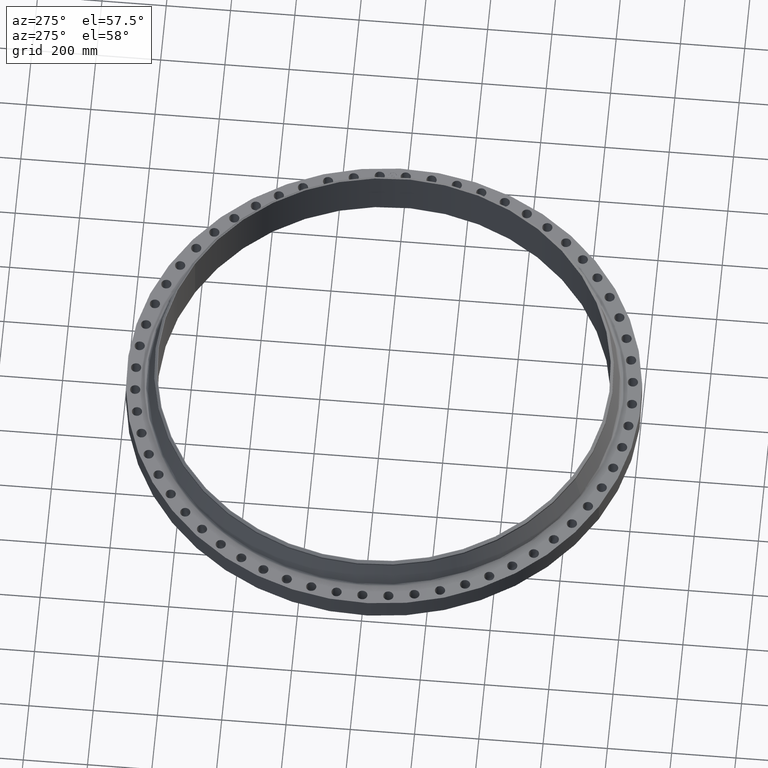
[diagram: clean part render]
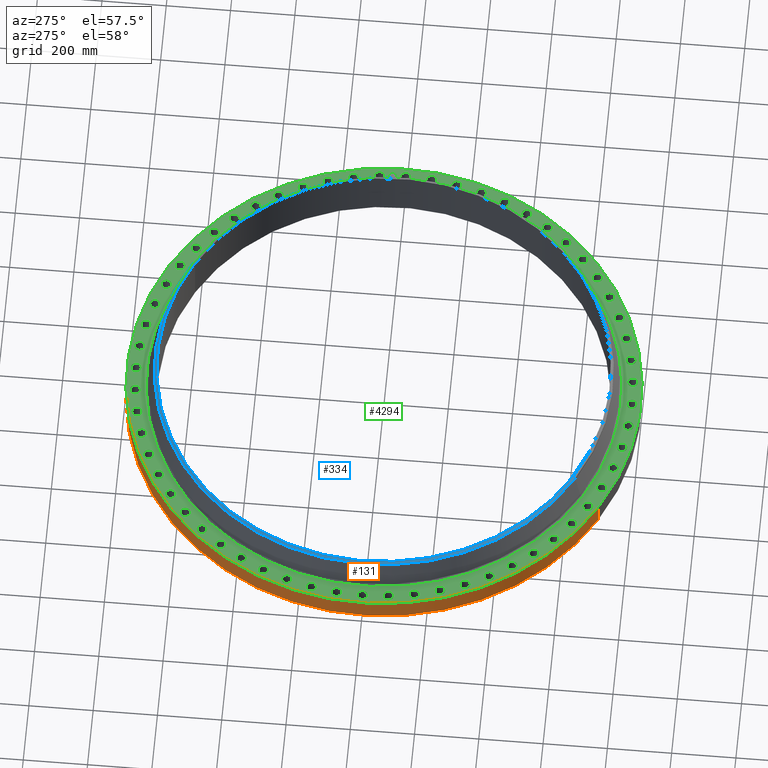
[diagram: same view with three faces highlighted in distinct colors, each labeled with its STEP entity id]
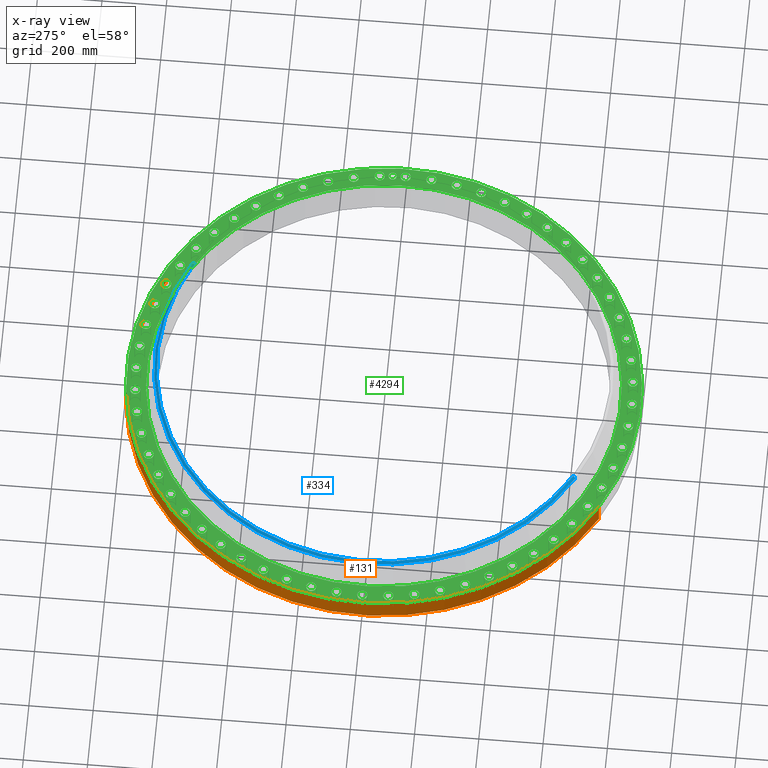
[diagram: x-ray of the same camera — body ghosted, the three highlighted faces saturated]
A machine part, auxiliary view with three faces highlighted in distinct colors.
The next image is the same camera in x-ray (body ghosted, the three faces saturated) — at least one of them is partly hidden behind the body in this view.
Their STEP definitions:

[orange] entity #131 — the highlighted cylindrical surface (partial cylindrical patch) has radius 800.1 mm, axis along (0, 0, -1).
#95=AXIS2_PLACEMENT_3D('Cylinder Axis2P3D',#92,#93,#94) ;
#99=AXIS2_PLACEMENT_3D('Circle Axis2P3D',#97,#98,$) ;
#115=AXIS2_PLACEMENT_3D('Circle Axis2P3D',#113,#114,$) ;
#92=CARTESIAN_POINT('Axis2P3D Location',(0.,0.,3.30000000001)) ;
#97=CARTESIAN_POINT('Axis2P3D Location',(0.,0.,3.91637728372E-015)) ;
#101=CARTESIAN_POINT('Vertex',(-15.1019044661,-27.6438506997,3.35689481461E-015)) ;
#103=CARTESIAN_POINT('Vertex',(15.1019044661,27.6438506997,3.35689481461E-015)) ;
#106=CARTESIAN_POINT('Line Origine',(-15.1019044661,-27.6438506997,1.41000000001)) ;
#110=CARTESIAN_POINT('Vertex',(-15.1019044661,-27.6438506997,2.82000000001)) ;
#113=CARTESIAN_POINT('Axis2P3D Location',(0.,0.,2.82000000001)) ;
#117=CARTESIAN_POINT('Vertex',(15.1019044661,27.6438506997,2.82000000001)) ;
#120=CARTESIAN_POINT('Line Origine',(15.1019044661,27.6438506997,1.41000000001)) ;
#93=DIRECTION('Axis2P3D Direction',(0.,0.,-0.0393700787402)) ;
#94=DIRECTION('Axis2P3D XDirection',(0.0188750212049,0.0345504945626,0.)) ;
#98=DIRECTION('Axis2P3D Direction',(0.,0.,-0.0393700787402)) ;
#107=DIRECTION('Vector Direction',(0.,0.,-0.0393700787402)) ;
#114=DIRECTION('Axis2P3D Direction',(0.,0.,-0.0393700787402)) ;
#121=DIRECTION('Vector Direction',(0.,0.,-0.0393700787402)) ;
#108=VECTOR('Line Direction',#107,0.0393700787402) ;
#122=VECTOR('Line Direction',#121,0.0393700787402) ;
#126=ORIENTED_EDGE('',*,*,#105,.F.) ;
#127=ORIENTED_EDGE('',*,*,#112,.T.) ;
#128=ORIENTED_EDGE('',*,*,#119,.T.) ;
#129=ORIENTED_EDGE('',*,*,#124,.F.) ;
#131=ADVANCED_FACE('PartBody',(#130),#96,.T.) ;
#100=CIRCLE('generated circle',#99,31.5000000001) ;
#116=CIRCLE('generated circle',#115,31.5000000001) ;
#96=CYLINDRICAL_SURFACE('generated cylinder',#95,31.5000000001) ;
#105=EDGE_CURVE('',#102,#104,#100,.T.) ;
#112=EDGE_CURVE('',#102,#111,#109,.F.) ;
#119=EDGE_CURVE('',#111,#118,#116,.T.) ;
#124=EDGE_CURVE('',#104,#118,#123,.F.) ;
#125=EDGE_LOOP('',(#126,#127,#128,#129)) ;
#130=FACE_OUTER_BOUND('',#125,.T.) ;
#109=LINE('Line',#106,#108) ;
#123=LINE('Line',#120,#122) ;
#102=VERTEX_POINT('',#101) ;
#104=VERTEX_POINT('',#103) ;
#111=VERTEX_POINT('',#110) ;
#118=VERTEX_POINT('',#117) ;

[blue] entity #334 — the highlighted conical surface has half-angle 52.5 deg.
#282=AXIS2_PLACEMENT_3D('Circle Axis2P3D',#280,#281,$) ;
#295=AXIS2_PLACEMENT_3D('Cone Axis2P3D',#292,#293,#294) ;
#325=AXIS2_PLACEMENT_3D('Circle Axis2P3D',#323,#324,$) ;
#258=CARTESIAN_POINT('Vertex',(-13.4526806133,-24.6249666867,6.26021031628)) ;
#265=CARTESIAN_POINT('Vertex',(13.4526806133,24.6249666867,6.26021031628)) ;
#280=CARTESIAN_POINT('Axis2P3D Location',(0.,0.,6.26021031628)) ;
#292=CARTESIAN_POINT('Axis2P3D Location',(0.,0.,6.50000000003)) ;
#297=CARTESIAN_POINT('Line Origine',(13.3777703729,24.4878444114,6.38010515815)) ;
#301=CARTESIAN_POINT('Vertex',(13.3028601325,24.3507221362,6.50000000003)) ;
#308=CARTESIAN_POINT('Vertex',(-13.3028601325,-24.3507221362,6.50000000003)) ;
#311=CARTESIAN_POINT('Line Origine',(-13.3777703729,-24.4878444114,6.38010515815)) ;
#323=CARTESIAN_POINT('Axis2P3D Location',(0.,0.,6.50000000003)) ;
#281=DIRECTION('Axis2P3D Direction',(0.,0.,-0.0393700787402)) ;
#293=DIRECTION('Axis2P3D Direction',(-0.,-0.,-0.0393700787402)) ;
#294=DIRECTION('Axis2P3D XDirection',(-0.0188750212049,-0.0345504945626,0.)) ;
#298=DIRECTION('Vector Direction',(0.014974561121,0.02741075027,-0.023966985394)) ;
#312=DIRECTION('Vector Direction',(-0.014974561121,-0.02741075027,-0.023966985394)) ;
#324=DIRECTION('Axis2P3D Direction',(0.,-0.,-0.0393700787402)) ;
#299=VECTOR('Line Direction',#298,0.0393700787402) ;
#313=VECTOR('Line Direction',#312,0.0393700787402) ;
#329=ORIENTED_EDGE('',*,*,#315,.F.) ;
#330=ORIENTED_EDGE('',*,*,#327,.T.) ;
#331=ORIENTED_EDGE('',*,*,#303,.T.) ;
#332=ORIENTED_EDGE('',*,*,#284,.F.) ;
#334=ADVANCED_FACE('PartBody',(#333),#296,.T.) ;
#283=CIRCLE('generated circle',#282,28.0600000001) ;
#326=CIRCLE('generated circle',#325,27.7475000001) ;
#296=CONICAL_SURFACE('Cone',#295,27.7475000001,0.916297857297) ;
#284=EDGE_CURVE('',#259,#266,#283,.T.) ;
#303=EDGE_CURVE('',#302,#266,#300,.T.) ;
#315=EDGE_CURVE('',#309,#259,#314,.T.) ;
#327=EDGE_CURVE('',#309,#302,#326,.T.) ;
#328=EDGE_LOOP('',(#329,#330,#331,#332)) ;
#333=FACE_OUTER_BOUND('',#328,.T.) ;
#300=LINE('Line',#297,#299) ;
#314=LINE('Line',#311,#313) ;
#259=VERTEX_POINT('',#258) ;
#266=VERTEX_POINT('',#265) ;
#302=VERTEX_POINT('',#301) ;
#309=VERTEX_POINT('',#308) ;

[green] entity #4294 — the highlighted planar face has unit normal (0, 0, -1).
#65=AXIS2_PLACEMENT_3D('Circle Axis2P3D',#63,#64,$) ;
#82=AXIS2_PLACEMENT_3D('Circle Axis2P3D',#80,#81,$) ;
#115=AXIS2_PLACEMENT_3D('Circle Axis2P3D',#113,#114,$) ;
#139=AXIS2_PLACEMENT_3D('Circle Axis2P3D',#137,#138,$) ;
#156=AXIS2_PLACEMENT_3D('Circle Axis2P3D',#154,#155,$) ;
#191=AXIS2_PLACEMENT_3D('Circle Axis2P3D',#189,#190,$) ;
#1507=AXIS2_PLACEMENT_3D('Circle Axis2P3D',#1505,#1506,$) ;
#1519=AXIS2_PLACEMENT_3D('Circle Axis2P3D',#1517,#1518,$) ;
#1550=AXIS2_PLACEMENT_3D('Circle Axis2P3D',#1548,#1549,$) ;
#1562=AXIS2_PLACEMENT_3D('Circle Axis2P3D',#1560,#1561,$) ;
#1593=AXIS2_PLACEMENT_3D('Circle Axis2P3D',#1591,#1592,$) ;
#1605=AXIS2_PLACEMENT_3D('Circle Axis2P3D',#1603,#1604,$) ;
#1636=AXIS2_PLACEMENT_3D('Circle Axis2P3D',#1634,#1635,$) ;
#1648=AXIS2_PLACEMENT_3D('Circle Axis2P3D',#1646,#1647,$) ;
#1679=AXIS2_PLACEMENT_3D('Circle Axis2P3D',#1677,#1678,$) ;
#1691=AXIS2_PLACEMENT_3D('Circle Axis2P3D',#1689,#1690,$) ;
#1722=AXIS2_PLACEMENT_3D('Circle Axis2P3D',#1720,#1721,$) ;
#1734=AXIS2_PLACEMENT_3D('Circle Axis2P3D',#1732,#1733,$) ;
#1765=AXIS2_PLACEMENT_3D('Circle Axis2P3D',#1763,#1764,$) ;
#1777=AXIS2_PLACEMENT_3D('Circle Axis2P3D',#1775,#1776,$) ;
#1808=AXIS2_PLACEMENT_3D('Circle Axis2P3D',#1806,#1807,$) ;
#1820=AXIS2_PLACEMENT_3D('Circle Axis2P3D',#1818,#1819,$) ;
#1851=AXIS2_PLACEMENT_3D('Circle Axis2P3D',#1849,#1850,$) ;
#1863=AXIS2_PLACEMENT_3D('Circle Axis2P3D',#1861,#1862,$) ;
#1894=AXIS2_PLACEMENT_3D('Circle Axis2P3D',#1892,#1893,$) ;
#1906=AXIS2_PLACEMENT_3D('Circle Axis2P3D',#1904,#1905,$) ;
#1937=AXIS2_PLACEMENT_3D('Circle Axis2P3D',#1935,#1936,$) ;
#1949=AXIS2_PLACEMENT_3D('Circle Axis2P3D',#1947,#1948,$) ;
#1980=AXIS2_PLACEMENT_3D('Circle Axis2P3D',#1978,#1979,$) ;
#1992=AXIS2_PLACEMENT_3D('Circle Axis2P3D',#1990,#1991,$) ;
#2023=AXIS2_PLACEMENT_3D('Circle Axis2P3D',#2021,#2022,$) ;
#2035=AXIS2_PLACEMENT_3D('Circle Axis2P3D',#2033,#2034,$) ;
#2066=AXIS2_PLACEMENT_3D('Circle Axis2P3D',#2064,#2065,$) ;
#2078=AXIS2_PLACEMENT_3D('Circle Axis2P3D',#2076,#2077,$) ;
#2109=AXIS2_PLACEMENT_3D('Circle Axis2P3D',#2107,#2108,$) ;
#2121=AXIS2_PLACEMENT_3D('Circle Axis2P3D',#2119,#2120,$) ;
#2152=AXIS2_PLACEMENT_3D('Circle Axis2P3D',#2150,#2151,$) ;
#2164=AXIS2_PLACEMENT_3D('Circle Axis2P3D',#2162,#2163,$) ;
#2195=AXIS2_PLACEMENT_3D('Circle Axis2P3D',#2193,#2194,$) ;
#2207=AXIS2_PLACEMENT_3D('Circle Axis2P3D',#2205,#2206,$) ;
#2238=AXIS2_PLACEMENT_3D('Circle Axis2P3D',#2236,#2237,$) ;
#2250=AXIS2_PLACEMENT_3D('Circle Axis2P3D',#2248,#2249,$) ;
#2281=AXIS2_PLACEMENT_3D('Circle Axis2P3D',#2279,#2280,$) ;
#2293=AXIS2_PLACEMENT_3D('Circle Axis2P3D',#2291,#2292,$) ;
#2324=AXIS2_PLACEMENT_3D('Circle Axis2P3D',#2322,#2323,$) ;
#2336=AXIS2_PLACEMENT_3D('Circle Axis2P3D',#2334,#2335,$) ;
#2367=AXIS2_PLACEMENT_3D('Circle Axis2P3D',#2365,#2366,$) ;
#2379=AXIS2_PLACEMENT_3D('Circle Axis2P3D',#2377,#2378,$) ;
#2410=AXIS2_PLACEMENT_3D('Circle Axis2P3D',#2408,#2409,$) ;
#2422=AXIS2_PLACEMENT_3D('Circle Axis2P3D',#2420,#2421,$) ;
#2453=AXIS2_PLACEMENT_3D('Circle Axis2P3D',#2451,#2452,$) ;
#2465=AXIS2_PLACEMENT_3D('Circle Axis2P3D',#2463,#2464,$) ;
#2496=AXIS2_PLACEMENT_3D('Circle Axis2P3D',#2494,#2495,$) ;
#2508=AXIS2_PLACEMENT_3D('Circle Axis2P3D',#2506,#2507,$) ;
#2539=AXIS2_PLACEMENT_3D('Circle Axis2P3D',#2537,#2538,$) ;
#2551=AXIS2_PLACEMENT_3D('Circle Axis2P3D',#2549,#2550,$) ;
#2582=AXIS2_PLACEMENT_3D('Circle Axis2P3D',#2580,#2581,$) ;
#2594=AXIS2_PLACEMENT_3D('Circle Axis2P3D',#2592,#2593,$) ;
#2625=AXIS2_PLACEMENT_3D('Circle Axis2P3D',#2623,#2624,$) ;
#2637=AXIS2_PLACEMENT_3D('Circle Axis2P3D',#2635,#2636,$) ;
#2668=AXIS2_PLACEMENT_3D('Circle Axis2P3D',#2666,#2667,$) ;
#2680=AXIS2_PLACEMENT_3D('Circle Axis2P3D',#2678,#2679,$) ;
#2711=AXIS2_PLACEMENT_3D('Circle Axis2P3D',#2709,#2710,$) ;
#2723=AXIS2_PLACEMENT_3D('Circle Axis2P3D',#2721,#2722,$) ;
#2754=AXIS2_PLACEMENT_3D('Circle Axis2P3D',#2752,#2753,$) ;
#2766=AXIS2_PLACEMENT_3D('Circle Axis2P3D',#2764,#2765,$) ;
#2797=AXIS2_PLACEMENT_3D('Circle Axis2P3D',#2795,#2796,$) ;
#2809=AXIS2_PLACEMENT_3D('Circle Axis2P3D',#2807,#2808,$) ;
#2840=AXIS2_PLACEMENT_3D('Circle Axis2P3D',#2838,#2839,$) ;
#2852=AXIS2_PLACEMENT_3D('Circle Axis2P3D',#2850,#2851,$) ;
#2883=AXIS2_PLACEMENT_3D('Circle Axis2P3D',#2881,#2882,$) ;
#2895=AXIS2_PLACEMENT_3D('Circle Axis2P3D',#2893,#2894,$) ;
#2926=AXIS2_PLACEMENT_3D('Circle Axis2P3D',#2924,#2925,$) ;
#2938=AXIS2_PLACEMENT_3D('Circle Axis2P3D',#2936,#2937,$) ;
#2969=AXIS2_PLACEMENT_3D('Circle Axis2P3D',#2967,#2968,$) ;
#2981=AXIS2_PLACEMENT_3D('Circle Axis2P3D',#2979,#2980,$) ;
#3012=AXIS2_PLACEMENT_3D('Circle Axis2P3D',#3010,#3011,$) ;
#3024=AXIS2_PLACEMENT_3D('Circle Axis2P3D',#3022,#3023,$) ;
#3055=AXIS2_PLACEMENT_3D('Circle Axis2P3D',#3053,#3054,$) ;
#3067=AXIS2_PLACEMENT_3D('Circle Axis2P3D',#3065,#3066,$) ;
#3098=AXIS2_PLACEMENT_3D('Circle Axis2P3D',#3096,#3097,$) ;
#3110=AXIS2_PLACEMENT_3D('Circle Axis2P3D',#3108,#3109,$) ;
#3141=AXIS2_PLACEMENT_3D('Circle Axis2P3D',#3139,#3140,$) ;
#3153=AXIS2_PLACEMENT_3D('Circle Axis2P3D',#3151,#3152,$) ;
#3184=AXIS2_PLACEMENT_3D('Circle Axis2P3D',#3182,#3183,$) ;
#3196=AXIS2_PLACEMENT_3D('Circle Axis2P3D',#3194,#3195,$) ;
#3227=AXIS2_PLACEMENT_3D('Circle Axis2P3D',#3225,#3226,$) ;
#3239=AXIS2_PLACEMENT_3D('Circle Axis2P3D',#3237,#3238,$) ;
#3270=AXIS2_PLACEMENT_3D('Circle Axis2P3D',#3268,#3269,$) ;
#3282=AXIS2_PLACEMENT_3D('Circle Axis2P3D',#3280,#3281,$) ;
#3313=AXIS2_PLACEMENT_3D('Circle Axis2P3D',#3311,#3312,$) ;
#3325=AXIS2_PLACEMENT_3D('Circle Axis2P3D',#3323,#3324,$) ;
#3356=AXIS2_PLACEMENT_3D('Circle Axis2P3D',#3354,#3355,$) ;
#3368=AXIS2_PLACEMENT_3D('Circle Axis2P3D',#3366,#3367,$) ;
#3399=AXIS2_PLACEMENT_3D('Circle Axis2P3D',#3397,#3398,$) ;
#3411=AXIS2_PLACEMENT_3D('Circle Axis2P3D',#3409,#3410,$) ;
#3442=AXIS2_PLACEMENT_3D('Circle Axis2P3D',#3440,#3441,$) ;
#3454=AXIS2_PLACEMENT_3D('Circle Axis2P3D',#3452,#3453,$) ;
#3485=AXIS2_PLACEMENT_3D('Circle Axis2P3D',#3483,#3484,$) ;
#3497=AXIS2_PLACEMENT_3D('Circle Axis2P3D',#3495,#3496,$) ;
#3528=AXIS2_PLACEMENT_3D('Circle Axis2P3D',#3526,#3527,$) ;
#3540=AXIS2_PLACEMENT_3D('Circle Axis2P3D',#3538,#3539,$) ;
#3571=AXIS2_PLACEMENT_3D('Circle Axis2P3D',#3569,#3570,$) ;
#3583=AXIS2_PLACEMENT_3D('Circle Axis2P3D',#3581,#3582,$) ;
#3614=AXIS2_PLACEMENT_3D('Circle Axis2P3D',#3612,#3613,$) ;
#3626=AXIS2_PLACEMENT_3D('Circle Axis2P3D',#3624,#3625,$) ;
#3657=AXIS2_PLACEMENT_3D('Circle Axis2P3D',#3655,#3656,$) ;
#3669=AXIS2_PLACEMENT_3D('Circle Axis2P3D',#3667,#3668,$) ;
#3700=AXIS2_PLACEMENT_3D('Circle Axis2P3D',#3698,#3699,$) ;
#3712=AXIS2_PLACEMENT_3D('Circle Axis2P3D',#3710,#3711,$) ;
#3743=AXIS2_PLACEMENT_3D('Circle Axis2P3D',#3741,#3742,$) ;
#3755=AXIS2_PLACEMENT_3D('Circle Axis2P3D',#3753,#3754,$) ;
#3786=AXIS2_PLACEMENT_3D('Circle Axis2P3D',#3784,#3785,$) ;
#3798=AXIS2_PLACEMENT_3D('Circle Axis2P3D',#3796,#3797,$) ;
#3829=AXIS2_PLACEMENT_3D('Circle Axis2P3D',#3827,#3828,$) ;
#3841=AXIS2_PLACEMENT_3D('Circle Axis2P3D',#3839,#3840,$) ;
#3872=AXIS2_PLACEMENT_3D('Circle Axis2P3D',#3870,#3871,$) ;
#3884=AXIS2_PLACEMENT_3D('Circle Axis2P3D',#3882,#3883,$) ;
#3915=AXIS2_PLACEMENT_3D('Circle Axis2P3D',#3913,#3914,$) ;
#3927=AXIS2_PLACEMENT_3D('Circle Axis2P3D',#3925,#3926,$) ;
#3958=AXIS2_PLACEMENT_3D('Circle Axis2P3D',#3956,#3957,$) ;
#3970=AXIS2_PLACEMENT_3D('Circle Axis2P3D',#3968,#3969,$) ;
#4001=AXIS2_PLACEMENT_3D('Circle Axis2P3D',#3999,#4000,$) ;
#4013=AXIS2_PLACEMENT_3D('Circle Axis2P3D',#4011,#4012,$) ;
#4026=AXIS2_PLACEMENT_3D('Plane Axis2P3D',#4023,#4024,#4025) ;
#4278=AXIS2_PLACEMENT_3D('Circle Axis2P3D',#4276,#4277,$) ;
#4287=AXIS2_PLACEMENT_3D('Circle Axis2P3D',#4285,#4286,$) ;
#46=CARTESIAN_POINT('Vertex',(29.8265108989,0.299640961629,2.82000000001)) ;
#60=CARTESIAN_POINT('Vertex',(30.9234891013,-0.299640961629,2.82000000001)) ;
#63=CARTESIAN_POINT('Axis2P3D Location',(30.3750000001,0.,2.82000000001)) ;
#80=CARTESIAN_POINT('Axis2P3D Location',(30.3750000001,0.,2.82000000001)) ;
#110=CARTESIAN_POINT('Vertex',(-15.1019044661,-27.6438506997,2.82000000001)) ;
#113=CARTESIAN_POINT('Axis2P3D Location',(0.,0.,2.82000000001)) ;
#117=CARTESIAN_POINT('Vertex',(15.1019044661,27.6438506997,2.82000000001)) ;
#137=CARTESIAN_POINT('Axis2P3D Location',(0.,0.,2.82000000001)) ;
#154=CARTESIAN_POINT('Axis2P3D Location',(0.,0.,2.82000000001)) ;
#158=CARTESIAN_POINT('Vertex',(13.9230653616,25.486000193,2.82000000001)) ;
#160=CARTESIAN_POINT('Vertex',(-13.9230653616,-25.486000193,2.82000000001)) ;
#189=CARTESIAN_POINT('Axis2P3D Location',(0.,0.,2.82000000001)) ;
#1495=CARTESIAN_POINT('Vertex',(-29.6944391607,2.81971985181,2.82000000001)) ;
#1502=CARTESIAN_POINT('Vertex',(-30.7227659832,3.53038429172,2.82000000001)) ;
#1505=CARTESIAN_POINT('Axis2P3D Location',(-30.2086025719,3.17505207177,2.82000000001)) ;
#1517=CARTESIAN_POINT('Axis2P3D Location',(-30.2086025719,3.17505207177,2.82000000001)) ;
#1538=CARTESIAN_POINT('Vertex',(29.237028933,-5.90818722449,2.82000000001)) ;
#1545=CARTESIAN_POINT('Vertex',(30.1854378118,-6.72244799274,2.82000000001)) ;
#1548=CARTESIAN_POINT('Axis2P3D Location',(29.7112333724,-6.31531760861,2.82000000001)) ;
#1560=CARTESIAN_POINT('Axis2P3D Location',(29.7112333724,-6.31531760861,2.82000000001)) ;
#1581=CARTESIAN_POINT('Vertex',(-29.237028933,5.90818722449,2.82000000001)) ;
#1588=CARTESIAN_POINT('Vertex',(-30.1854378118,6.72244799274,2.82000000001)) ;
#1591=CARTESIAN_POINT('Axis2P3D Location',(-29.7112333724,6.31531760861,2.82000000001)) ;
#1603=CARTESIAN_POINT('Axis2P3D Location',(-29.7112333724,6.31531760861,2.82000000001)) ;
#1624=CARTESIAN_POINT('Vertex',(28.4592916981,-8.93192326158,2.82000000001)) ;
#1631=CARTESIAN_POINT('Vertex',(29.317391667,-9.84085914678,2.82000000001)) ;
#1634=CARTESIAN_POINT('Axis2P3D Location',(28.8883416826,-9.38639120418,2.82000000001)) ;
#1646=CARTESIAN_POINT('Axis2P3D Location',(28.8883416826,-9.38639120418,2.82000000001)) ;
#1667=CARTESIAN_POINT('Vertex',(-28.4592916981,8.93192326158,2.82000000001)) ;
#1674=CARTESIAN_POINT('Vertex',(-29.317391667,9.84085914678,2.82000000001)) ;
#1677=CARTESIAN_POINT('Axis2P3D Location',(-28.8883416826,9.38639120418,2.82000000001)) ;
#1689=CARTESIAN_POINT('Axis2P3D Location',(-28.8883416826,9.38639120418,2.82000000001)) ;
#1710=CARTESIAN_POINT('Vertex',(27.3697485079,-11.8577992783,2.82000000001)) ;
#1717=CARTESIAN_POINT('Vertex',(28.1281380441,-12.8514517887,2.82000000001)) ;
#1720=CARTESIAN_POINT('Axis2P3D Location',(27.748943276,-12.3546255335,2.82000000001)) ;
#1732=CARTESIAN_POINT('Axis2P3D Location',(27.748943276,-12.3546255335,2.82000000001)) ;
#1753=CARTESIAN_POINT('Vertex',(-27.3697485079,11.8577992783,2.82000000001)) ;
#1760=CARTESIAN_POINT('Vertex',(-28.1281380441,12.8514517887,2.82000000001)) ;
#1763=CARTESIAN_POINT('Axis2P3D Location',(-27.748943276,12.3546255335,2.82000000001)) ;
#1775=CARTESIAN_POINT('Axis2P3D Location',(-27.748943276,12.3546255335,2.82000000001)) ;
#1796=CARTESIAN_POINT('Vertex',(25.9803366255,-14.6537587647,2.82000000001)) ;
#1803=CARTESIAN_POINT('Vertex',(26.6307066546,-15.7212412354,2.82000000001)) ;
#1806=CARTESIAN_POINT('Axis2P3D Location',(26.3055216401,-15.1875000001,2.82000000001)) ;
#1818=CARTESIAN_POINT('Axis2P3D Location',(26.3055216401,-15.1875000001,2.82000000001)) ;
#1839=CARTESIAN_POINT('Vertex',(-25.9803366255,14.6537587647,2.82000000001)) ;
#1846=CARTESIAN_POINT('Vertex',(-26.6307066546,15.7212412354,2.82000000001)) ;
#1849=CARTESIAN_POINT('Axis2P3D Location',(-26.3055216401,15.1875000001,2.82000000001)) ;
#1861=CARTESIAN_POINT('Axis2P3D Location',(-26.3055216401,15.1875000001,2.82000000001)) ;
#1882=CARTESIAN_POINT('Vertex',(24.3062787384,-17.2891686036,2.82000000001)) ;
#1889=CARTESIAN_POINT('Vertex',(24.8415036701,-18.4187854733,2.82000000001)) ;
#1892=CARTESIAN_POINT('Axis2P3D Location',(24.5738912042,-17.8539770385,2.82000000001)) ;
#1904=CARTESIAN_POINT('Axis2P3D Location',(24.5738912042,-17.8539770385,2.82000000001)) ;
#1925=CARTESIAN_POINT('Vertex',(-24.3062787384,17.2891686036,2.82000000001)) ;
#1932=CARTESIAN_POINT('Vertex',(-24.8415036701,18.4187854733,2.82000000001)) ;
#1935=CARTESIAN_POINT('Axis2P3D Location',(-24.5738912042,17.8539770385,2.82000000001)) ;
#1947=CARTESIAN_POINT('Axis2P3D Location',(-24.5738912042,17.8539770385,2.82000000001)) ;
#1968=CARTESIAN_POINT('Vertex',(22.3659161749,-19.7351546932,2.82000000001)) ;
#1975=CARTESIAN_POINT('Vertex',(22.780131973,-20.9145296432,2.82000000001)) ;
#1978=CARTESIAN_POINT('Axis2P3D Location',(22.573024074,-20.3248421682,2.82000000001)) ;
#1990=CARTESIAN_POINT('Axis2P3D Location',(22.573024074,-20.3248421682,2.82000000001)) ;
#2011=CARTESIAN_POINT('Vertex',(-22.3659161749,19.7351546932,2.82000000001)) ;
#2018=CARTESIAN_POINT('Vertex',(-22.780131973,20.9145296432,2.82000000001)) ;
#2021=CARTESIAN_POINT('Axis2P3D Location',(-22.573024074,20.3248421682,2.82000000001)) ;
#2033=CARTESIAN_POINT('Axis2P3D Location',(-22.573024074,20.3248421682,2.82000000001)) ;
#2054=CARTESIAN_POINT('Vertex',(20.1805079535,-21.9649182982,2.82000000001)) ;
#2061=CARTESIAN_POINT('Vertex',(20.469176383,-23.1811298497,2.82000000001)) ;
#2064=CARTESIAN_POINT('Axis2P3D Location',(20.3248421682,-22.573024074,2.82000000001)) ;
#2076=CARTESIAN_POINT('Axis2P3D Location',(20.3248421682,-22.573024074,2.82000000001)) ;
#2097=CARTESIAN_POINT('Vertex',(-20.1805079535,21.9649182982,2.82000000001)) ;
#2104=CARTESIAN_POINT('Vertex',(-20.469176383,23.1811298497,2.82000000001)) ;
#2107=CARTESIAN_POINT('Axis2P3D Location',(-20.3248421682,22.573024074,2.82000000001)) ;
#2119=CARTESIAN_POINT('Axis2P3D Location',(-20.3248421682,22.573024074,2.82000000001)) ;
#2140=CARTESIAN_POINT('Vertex',(17.7739978639,-23.9540296619,2.82000000001)) ;
#2147=CARTESIAN_POINT('Vertex',(17.933956213,-25.1937527466,2.82000000001)) ;
#2150=CARTESIAN_POINT('Axis2P3D Location',(17.8539770385,-24.5738912042,2.82000000001)) ;
#2162=CARTESIAN_POINT('Axis2P3D Location',(17.8539770385,-24.5738912042,2.82000000001)) ;
#2183=CARTESIAN_POINT('Vertex',(-17.7739978639,23.9540296619,2.82000000001)) ;
#2190=CARTESIAN_POINT('Vertex',(-17.933956213,25.1937527466,2.82000000001)) ;
#2193=CARTESIAN_POINT('Axis2P3D Location',(-17.8539770385,24.5738912042,2.82000000001)) ;
#2205=CARTESIAN_POINT('Axis2P3D Location',(-17.8539770385,24.5738912042,2.82000000001)) ;
#2226=CARTESIAN_POINT('Vertex',(15.1727521343,-25.6806956639,2.82000000001)) ;
#2233=CARTESIAN_POINT('Vertex',(15.2022478659,-26.9303476162,2.82000000001)) ;
#2236=CARTESIAN_POINT('Axis2P3D Location',(15.1875000001,-26.3055216401,2.82000000001)) ;
#2248=CARTESIAN_POINT('Axis2P3D Location',(15.1875000001,-26.3055216401,2.82000000001)) ;
#2269=CARTESIAN_POINT('Vertex',(-15.1727521343,25.6806956639,2.82000000001)) ;
#2276=CARTESIAN_POINT('Vertex',(-15.2022478659,26.9303476162,2.82000000001)) ;
#2279=CARTESIAN_POINT('Axis2P3D Location',(-15.1875000001,26.3055216401,2.82000000001)) ;
#2291=CARTESIAN_POINT('Axis2P3D Location',(-15.1875000001,26.3055216401,2.82000000001)) ;
#2312=CARTESIAN_POINT('Vertex',(12.4052705571,-27.1259985902,2.82000000001)) ;
#2319=CARTESIAN_POINT('Vertex',(12.3039805098,-28.3718879618,2.82000000001)) ;
#2322=CARTESIAN_POINT('Axis2P3D Location',(12.3546255335,-27.748943276,2.82000000001)) ;
#2334=CARTESIAN_POINT('Axis2P3D Location',(12.3546255335,-27.748943276,2.82000000001)) ;
#2355=CARTESIAN_POINT('Vertex',(-12.4052705571,27.1259985902,2.82000000001)) ;
#2362=CARTESIAN_POINT('Vertex',(-12.3039805098,28.3718879618,2.82000000001)) ;
#2365=CARTESIAN_POINT('Axis2P3D Location',(-12.3546255335,27.748943276,2.82000000001)) ;
#2377=CARTESIAN_POINT('Axis2P3D Location',(-12.3546255335,27.748943276,2.82000000001)) ;
#2398=CARTESIAN_POINT('Vertex',(9.50187423979,-28.2741033994,2.82000000001)) ;
#2405=CARTESIAN_POINT('Vertex',(9.27090816857,-29.5025799657,2.82000000001)) ;
#2408=CARTESIAN_POINT('Axis2P3D Location',(9.38639120418,-28.8883416826,2.82000000001)) ;
#2420=CARTESIAN_POINT('Axis2P3D Location',(9.38639120418,-28.8883416826,2.82000000001)) ;
#2441=CARTESIAN_POINT('Vertex',(-9.50187423979,28.2741033994,2.82000000001)) ;
#2448=CARTESIAN_POINT('Vertex',(-9.27090816857,29.5025799657,2.82000000001)) ;
#2451=CARTESIAN_POINT('Axis2P3D Location',(-9.38639120418,28.8883416826,2.82000000001)) ;
#2463=CARTESIAN_POINT('Axis2P3D Location',(-9.38639120418,28.8883416826,2.82000000001)) ;
#2484=CARTESIAN_POINT('Vertex',(6.49437339989,-29.1124312151,2.82000000001)) ;
#2491=CARTESIAN_POINT('Vertex',(6.13626181734,-30.3100355297,2.82000000001)) ;
#2494=CARTESIAN_POINT('Axis2P3D Location',(6.31531760861,-29.7112333724,2.82000000001)) ;
#2506=CARTESIAN_POINT('Axis2P3D Location',(6.31531760861,-29.7112333724,2.82000000001)) ;
#2527=CARTESIAN_POINT('Vertex',(-6.49437339989,29.1124312151,2.82000000001)) ;
#2534=CARTESIAN_POINT('Vertex',(-6.13626181734,30.3100355297,2.82000000001)) ;
#2537=CARTESIAN_POINT('Axis2P3D Location',(-6.31531760861,29.7112333724,2.82000000001)) ;
#2549=CARTESIAN_POINT('Axis2P3D Location',(-6.31531760861,29.7112333724,2.82000000001)) ;
#2570=CARTESIAN_POINT('Vertex',(3.41571884599,-29.6317971422,2.82000000001)) ;
#2577=CARTESIAN_POINT('Vertex',(2.93438529754,-30.7854080017,2.82000000001)) ;
#2580=CARTESIAN_POINT('Axis2P3D Location',(3.17505207177,-30.2086025719,2.82000000001)) ;
#2592=CARTESIAN_POINT('Axis2P3D Location',(3.17505207177,-30.2086025719,2.82000000001)) ;
#2613=CARTESIAN_POINT('Vertex',(-3.41571884599,29.6317971422,2.82000000001)) ;
#2620=CARTESIAN_POINT('Vertex',(-2.93438529754,30.7854080017,2.82000000001)) ;
#2623=CARTESIAN_POINT('Axis2P3D Location',(-3.17505207177,30.2086025719,2.82000000001)) ;
#2635=CARTESIAN_POINT('Axis2P3D Location',(-3.17505207177,30.2086025719,2.82000000001)) ;
#2656=CARTESIAN_POINT('Vertex',(0.299640961629,-29.8265108989,2.82000000001)) ;
#2663=CARTESIAN_POINT('Vertex',(-0.299640961629,-30.9234891013,2.82000000001)) ;
#2666=CARTESIAN_POINT('Axis2P3D Location',(-2.61592742661E-015,-30.3750000001,2.82000000001)) ;
#2678=CARTESIAN_POINT('Axis2P3D Location',(-2.61592742661E-015,-30.3750000001,2.82000000001)) ;
#2699=CARTESIAN_POINT('Vertex',(-0.299640961629,29.8265108989,2.82000000001)) ;
#2706=CARTESIAN_POINT('Vertex',(0.299640961629,30.9234891013,2.82000000001)) ;
#2709=CARTESIAN_POINT('Axis2P3D Location',(-1.10393722582E-015,30.3750000001,2.82000000001)) ;
#2721=CARTESIAN_POINT('Axis2P3D Location',(-1.10393722582E-015,30.3750000001,2.82000000001)) ;
#2742=CARTESIAN_POINT('Vertex',(-2.81971985181,-29.6944391607,2.82000000001)) ;
#2749=CARTESIAN_POINT('Vertex',(-3.53038429172,-30.7227659832,2.82000000001)) ;
#2752=CARTESIAN_POINT('Axis2P3D Location',(-3.17505207177,-30.2086025719,2.82000000001)) ;
#2764=CARTESIAN_POINT('Axis2P3D Location',(-3.17505207177,-30.2086025719,2.82000000001)) ;
#2785=CARTESIAN_POINT('Vertex',(2.81971985181,29.6944391607,2.82000000001)) ;
#2792=CARTESIAN_POINT('Vertex',(3.53038429172,30.7227659832,2.82000000001)) ;
#2795=CARTESIAN_POINT('Axis2P3D Location',(3.17505207177,30.2086025719,2.82000000001)) ;
#2807=CARTESIAN_POINT('Axis2P3D Location',(3.17505207177,30.2086025719,2.82000000001)) ;
#2828=CARTESIAN_POINT('Vertex',(-5.90818722449,-29.237028933,2.82000000001)) ;
#2835=CARTESIAN_POINT('Vertex',(-6.72244799274,-30.1854378118,2.82000000001)) ;
#2838=CARTESIAN_POINT('Axis2P3D Location',(-6.31531760861,-29.7112333724,2.82000000001)) ;
#2850=CARTESIAN_POINT('Axis2P3D Location',(-6.31531760861,-29.7112333724,2.82000000001)) ;
#2871=CARTESIAN_POINT('Vertex',(5.90818722449,29.237028933,2.82000000001)) ;
#2878=CARTESIAN_POINT('Vertex',(6.72244799274,30.1854378118,2.82000000001)) ;
#2881=CARTESIAN_POINT('Axis2P3D Location',(6.31531760861,29.7112333724,2.82000000001)) ;
#2893=CARTESIAN_POINT('Axis2P3D Location',(6.31531760861,29.7112333724,2.82000000001)) ;
#2914=CARTESIAN_POINT('Vertex',(-8.93192326158,-28.4592916981,2.82000000001)) ;
#2921=CARTESIAN_POINT('Vertex',(-9.84085914678,-29.317391667,2.82000000001)) ;
#2924=CARTESIAN_POINT('Axis2P3D Location',(-9.38639120418,-28.8883416826,2.82000000001)) ;
#2936=CARTESIAN_POINT('Axis2P3D Location',(-9.38639120418,-28.8883416826,2.82000000001)) ;
#2957=CARTESIAN_POINT('Vertex',(8.93192326158,28.4592916981,2.82000000001)) ;
#2964=CARTESIAN_POINT('Vertex',(9.84085914678,29.317391667,2.82000000001)) ;
#2967=CARTESIAN_POINT('Axis2P3D Location',(9.38639120418,28.8883416826,2.82000000001)) ;
#2979=CARTESIAN_POINT('Axis2P3D Location',(9.38639120418,28.8883416826,2.82000000001)) ;
#3000=CARTESIAN_POINT('Vertex',(-11.8577992783,-27.3697485079,2.82000000001)) ;
#3007=CARTESIAN_POINT('Vertex',(-12.8514517887,-28.1281380441,2.82000000001)) ;
#3010=CARTESIAN_POINT('Axis2P3D Location',(-12.3546255335,-27.748943276,2.82000000001)) ;
#3022=CARTESIAN_POINT('Axis2P3D Location',(-12.3546255335,-27.748943276,2.82000000001)) ;
#3043=CARTESIAN_POINT('Vertex',(11.8577992783,27.3697485079,2.82000000001)) ;
#3050=CARTESIAN_POINT('Vertex',(12.8514517887,28.1281380441,2.82000000001)) ;
#3053=CARTESIAN_POINT('Axis2P3D Location',(12.3546255335,27.748943276,2.82000000001)) ;
#3065=CARTESIAN_POINT('Axis2P3D Location',(12.3546255335,27.748943276,2.82000000001)) ;
#3086=CARTESIAN_POINT('Vertex',(-14.6537587647,-25.9803366255,2.82000000001)) ;
#3093=CARTESIAN_POINT('Vertex',(-15.7212412354,-26.6307066546,2.82000000001)) ;
#3096=CARTESIAN_POINT('Axis2P3D Location',(-15.1875000001,-26.3055216401,2.82000000001)) ;
#3108=CARTESIAN_POINT('Axis2P3D Location',(-15.1875000001,-26.3055216401,2.82000000001)) ;
#3129=CARTESIAN_POINT('Vertex',(14.6537587647,25.9803366255,2.82000000001)) ;
#3136=CARTESIAN_POINT('Vertex',(15.7212412354,26.6307066546,2.82000000001)) ;
#3139=CARTESIAN_POINT('Axis2P3D Location',(15.1875000001,26.3055216401,2.82000000001)) ;
#3151=CARTESIAN_POINT('Axis2P3D Location',(15.1875000001,26.3055216401,2.82000000001)) ;
#3172=CARTESIAN_POINT('Vertex',(-17.2891686036,-24.3062787384,2.82000000001)) ;
#3179=CARTESIAN_POINT('Vertex',(-18.4187854733,-24.8415036701,2.82000000001)) ;
#3182=CARTESIAN_POINT('Axis2P3D Location',(-17.8539770385,-24.5738912042,2.82000000001)) ;
#3194=CARTESIAN_POINT('Axis2P3D Location',(-17.8539770385,-24.5738912042,2.82000000001)) ;
#3215=CARTESIAN_POINT('Vertex',(17.2891686036,24.3062787384,2.82000000001)) ;
#3222=CARTESIAN_POINT('Vertex',(18.4187854733,24.8415036701,2.82000000001)) ;
#3225=CARTESIAN_POINT('Axis2P3D Location',(17.8539770385,24.5738912042,2.82000000001)) ;
#3237=CARTESIAN_POINT('Axis2P3D Location',(17.8539770385,24.5738912042,2.82000000001)) ;
#3258=CARTESIAN_POINT('Vertex',(-19.7351546932,-22.3659161749,2.82000000001)) ;
#3265=CARTESIAN_POINT('Vertex',(-20.9145296432,-22.780131973,2.82000000001)) ;
#3268=CARTESIAN_POINT('Axis2P3D Location',(-20.3248421682,-22.573024074,2.82000000001)) ;
#3280=CARTESIAN_POINT('Axis2P3D Location',(-20.3248421682,-22.573024074,2.82000000001)) ;
#3301=CARTESIAN_POINT('Vertex',(19.7351546932,22.3659161749,2.82000000001)) ;
#3308=CARTESIAN_POINT('Vertex',(20.9145296432,22.780131973,2.82000000001)) ;
#3311=CARTESIAN_POINT('Axis2P3D Location',(20.3248421682,22.573024074,2.82000000001)) ;
#3323=CARTESIAN_POINT('Axis2P3D Location',(20.3248421682,22.573024074,2.82000000001)) ;
#3344=CARTESIAN_POINT('Vertex',(-21.9649182982,-20.1805079535,2.82000000001)) ;
#3351=CARTESIAN_POINT('Vertex',(-23.1811298497,-20.469176383,2.82000000001)) ;
#3354=CARTESIAN_POINT('Axis2P3D Location',(-22.573024074,-20.3248421682,2.82000000001)) ;
#3366=CARTESIAN_POINT('Axis2P3D Location',(-22.573024074,-20.3248421682,2.82000000001)) ;
#3387=CARTESIAN_POINT('Vertex',(21.9649182982,20.1805079535,2.82000000001)) ;
#3394=CARTESIAN_POINT('Vertex',(23.1811298497,20.469176383,2.82000000001)) ;
#3397=CARTESIAN_POINT('Axis2P3D Location',(22.573024074,20.3248421682,2.82000000001)) ;
#3409=CARTESIAN_POINT('Axis2P3D Location',(22.573024074,20.3248421682,2.82000000001)) ;
#3430=CARTESIAN_POINT('Vertex',(-23.9540296619,-17.7739978639,2.82000000001)) ;
#3437=CARTESIAN_POINT('Vertex',(-25.1937527466,-17.933956213,2.82000000001)) ;
#3440=CARTESIAN_POINT('Axis2P3D Location',(-24.5738912042,-17.8539770385,2.82000000001)) ;
#3452=CARTESIAN_POINT('Axis2P3D Location',(-24.5738912042,-17.8539770385,2.82000000001)) ;
#3473=CARTESIAN_POINT('Vertex',(23.9540296619,17.7739978639,2.82000000001)) ;
#3480=CARTESIAN_POINT('Vertex',(25.1937527466,17.933956213,2.82000000001)) ;
#3483=CARTESIAN_POINT('Axis2P3D Location',(24.5738912042,17.8539770385,2.82000000001)) ;
#3495=CARTESIAN_POINT('Axis2P3D Location',(24.5738912042,17.8539770385,2.82000000001)) ;
#3516=CARTESIAN_POINT('Vertex',(-25.6806956639,-15.1727521343,2.82000000001)) ;
#3523=CARTESIAN_POINT('Vertex',(-26.9303476162,-15.2022478659,2.82000000001)) ;
#3526=CARTESIAN_POINT('Axis2P3D Location',(-26.3055216401,-15.1875000001,2.82000000001)) ;
#3538=CARTESIAN_POINT('Axis2P3D Location',(-26.3055216401,-15.1875000001,2.82000000001)) ;
#3559=CARTESIAN_POINT('Vertex',(25.6806956639,15.1727521343,2.82000000001)) ;
#3566=CARTESIAN_POINT('Vertex',(26.9303476162,15.2022478659,2.82000000001)) ;
#3569=CARTESIAN_POINT('Axis2P3D Location',(26.3055216401,15.1875000001,2.82000000001)) ;
#3581=CARTESIAN_POINT('Axis2P3D Location',(26.3055216401,15.1875000001,2.82000000001)) ;
#3602=CARTESIAN_POINT('Vertex',(-27.1259985902,-12.4052705571,2.82000000001)) ;
#3609=CARTESIAN_POINT('Vertex',(-28.3718879618,-12.3039805098,2.82000000001)) ;
#3612=CARTESIAN_POINT('Axis2P3D Location',(-27.748943276,-12.3546255335,2.82000000001)) ;
#3624=CARTESIAN_POINT('Axis2P3D Location',(-27.748943276,-12.3546255335,2.82000000001)) ;
#3645=CARTESIAN_POINT('Vertex',(27.1259985902,12.4052705571,2.82000000001)) ;
#3652=CARTESIAN_POINT('Vertex',(28.3718879618,12.3039805098,2.82000000001)) ;
#3655=CARTESIAN_POINT('Axis2P3D Location',(27.748943276,12.3546255335,2.82000000001)) ;
#3667=CARTESIAN_POINT('Axis2P3D Location',(27.748943276,12.3546255335,2.82000000001)) ;
#3688=CARTESIAN_POINT('Vertex',(-28.2741033994,-9.50187423979,2.82000000001)) ;
#3695=CARTESIAN_POINT('Vertex',(-29.5025799657,-9.27090816857,2.82000000001)) ;
#3698=CARTESIAN_POINT('Axis2P3D Location',(-28.8883416826,-9.38639120418,2.82000000001)) ;
#3710=CARTESIAN_POINT('Axis2P3D Location',(-28.8883416826,-9.38639120418,2.82000000001)) ;
#3731=CARTESIAN_POINT('Vertex',(28.2741033994,9.50187423979,2.82000000001)) ;
#3738=CARTESIAN_POINT('Vertex',(29.5025799657,9.27090816857,2.82000000001)) ;
#3741=CARTESIAN_POINT('Axis2P3D Location',(28.8883416826,9.38639120418,2.82000000001)) ;
#3753=CARTESIAN_POINT('Axis2P3D Location',(28.8883416826,9.38639120418,2.82000000001)) ;
#3774=CARTESIAN_POINT('Vertex',(-29.1124312151,-6.49437339989,2.82000000001)) ;
#3781=CARTESIAN_POINT('Vertex',(-30.3100355297,-6.13626181734,2.82000000001)) ;
#3784=CARTESIAN_POINT('Axis2P3D Location',(-29.7112333724,-6.31531760861,2.82000000001)) ;
#3796=CARTESIAN_POINT('Axis2P3D Location',(-29.7112333724,-6.31531760861,2.82000000001)) ;
#3817=CARTESIAN_POINT('Vertex',(29.1124312151,6.49437339989,2.82000000001)) ;
#3824=CARTESIAN_POINT('Vertex',(30.3100355297,6.13626181734,2.82000000001)) ;
#3827=CARTESIAN_POINT('Axis2P3D Location',(29.7112333724,6.31531760861,2.82000000001)) ;
#3839=CARTESIAN_POINT('Axis2P3D Location',(29.7112333724,6.31531760861,2.82000000001)) ;
#3860=CARTESIAN_POINT('Vertex',(-29.6317971422,-3.41571884599,2.82000000001)) ;
#3867=CARTESIAN_POINT('Vertex',(-30.7854080017,-2.93438529754,2.82000000001)) ;
#3870=CARTESIAN_POINT('Axis2P3D Location',(-30.2086025719,-3.17505207177,2.82000000001)) ;
#3882=CARTESIAN_POINT('Axis2P3D Location',(-30.2086025719,-3.17505207177,2.82000000001)) ;
#3903=CARTESIAN_POINT('Vertex',(29.6317971422,3.41571884599,2.82000000001)) ;
#3910=CARTESIAN_POINT('Vertex',(30.7854080017,2.93438529754,2.82000000001)) ;
#3913=CARTESIAN_POINT('Axis2P3D Location',(30.2086025719,3.17505207177,2.82000000001)) ;
#3925=CARTESIAN_POINT('Axis2P3D Location',(30.2086025719,3.17505207177,2.82000000001)) ;
#3946=CARTESIAN_POINT('Vertex',(-29.8265108989,-0.299640961629,2.82000000001)) ;
#3953=CARTESIAN_POINT('Vertex',(-30.9234891013,0.299640961629,2.82000000001)) ;
#3956=CARTESIAN_POINT('Axis2P3D Location',(-30.3750000001,-3.71986465242E-015,2.82000000001)) ;
#3968=CARTESIAN_POINT('Axis2P3D Location',(-30.3750000001,-3.71986465242E-015,2.82000000001)) ;
#3989=CARTESIAN_POINT('Vertex',(29.6944391607,-2.81971985181,2.82000000001)) ;
#3996=CARTESIAN_POINT('Vertex',(30.7227659832,-3.53038429172,2.82000000001)) ;
#3999=CARTESIAN_POINT('Axis2P3D Location',(30.2086025719,-3.17505207177,2.82000000001)) ;
#4011=CARTESIAN_POINT('Axis2P3D Location',(30.2086025719,-3.17505207177,2.82000000001)) ;
#4023=CARTESIAN_POINT('Axis2P3D Location',(0.,31.5000000001,2.82000000001)) ;
#4276=CARTESIAN_POINT('Axis2P3D Location',(30.3333721183,1.58970467089,2.82000000001)) ;
#4280=CARTESIAN_POINT('Vertex',(30.3072042001,2.08901829383,2.82000000001)) ;
#4282=CARTESIAN_POINT('Vertex',(30.3595400364,1.09039104794,2.82000000001)) ;
#4285=CARTESIAN_POINT('Axis2P3D Location',(30.3333721183,1.58970467089,2.82000000001)) ;
#64=DIRECTION('Axis2P3D Direction',(0.,-0.,-0.0393700787402)) ;
#81=DIRECTION('Axis2P3D Direction',(0.,-0.,-0.0393700787402)) ;
#114=DIRECTION('Axis2P3D Direction',(0.,0.,-0.0393700787402)) ;
#138=DIRECTION('Axis2P3D Direction',(0.,0.,-0.0393700787402)) ;
#155=DIRECTION('Axis2P3D Direction',(0.,0.,-0.0393700787402)) ;
#190=DIRECTION('Axis2P3D Direction',(0.,0.,-0.0393700787402)) ;
#1506=DIRECTION('Axis2P3D Direction',(0.,0.,-0.0393700787402)) ;
#1518=DIRECTION('Axis2P3D Direction',(0.,0.,-0.0393700787402)) ;
#1549=DIRECTION('Axis2P3D Direction',(0.,-0.,-0.0393700787402)) ;
#1561=DIRECTION('Axis2P3D Direction',(0.,-0.,-0.0393700787402)) ;
#1592=DIRECTION('Axis2P3D Direction',(0.,0.,-0.0393700787402)) ;
#1604=DIRECTION('Axis2P3D Direction',(0.,0.,-0.0393700787402)) ;
#1635=DIRECTION('Axis2P3D Direction',(0.,-0.,-0.0393700787402)) ;
#1647=DIRECTION('Axis2P3D Direction',(0.,-0.,-0.0393700787402)) ;
#1678=DIRECTION('Axis2P3D Direction',(0.,0.,-0.0393700787402)) ;
#1690=DIRECTION('Axis2P3D Direction',(0.,0.,-0.0393700787402)) ;
#1721=DIRECTION('Axis2P3D Direction',(0.,-0.,-0.0393700787402)) ;
#1733=DIRECTION('Axis2P3D Direction',(0.,-0.,-0.0393700787402)) ;
#1764=DIRECTION('Axis2P3D Direction',(0.,0.,-0.0393700787402)) ;
#1776=DIRECTION('Axis2P3D Direction',(0.,0.,-0.0393700787402)) ;
#1807=DIRECTION('Axis2P3D Direction',(0.,-0.,-0.0393700787402)) ;
#1819=DIRECTION('Axis2P3D Direction',(0.,-0.,-0.0393700787402)) ;
#1850=DIRECTION('Axis2P3D Direction',(0.,0.,-0.0393700787402)) ;
#1862=DIRECTION('Axis2P3D Direction',(0.,0.,-0.0393700787402)) ;
#1893=DIRECTION('Axis2P3D Direction',(0.,-0.,-0.0393700787402)) ;
#1905=DIRECTION('Axis2P3D Direction',(0.,-0.,-0.0393700787402)) ;
#1936=DIRECTION('Axis2P3D Direction',(0.,0.,-0.0393700787402)) ;
#1948=DIRECTION('Axis2P3D Direction',(0.,0.,-0.0393700787402)) ;
#1979=DIRECTION('Axis2P3D Direction',(0.,-0.,-0.0393700787402)) ;
#1991=DIRECTION('Axis2P3D Direction',(0.,-0.,-0.0393700787402)) ;
#2022=DIRECTION('Axis2P3D Direction',(0.,0.,-0.0393700787402)) ;
#2034=DIRECTION('Axis2P3D Direction',(0.,0.,-0.0393700787402)) ;
#2065=DIRECTION('Axis2P3D Direction',(0.,-0.,-0.0393700787402)) ;
#2077=DIRECTION('Axis2P3D Direction',(0.,-0.,-0.0393700787402)) ;
#2108=DIRECTION('Axis2P3D Direction',(0.,0.,-0.0393700787402)) ;
#2120=DIRECTION('Axis2P3D Direction',(0.,0.,-0.0393700787402)) ;
#2151=DIRECTION('Axis2P3D Direction',(0.,-0.,-0.0393700787402)) ;
#2163=DIRECTION('Axis2P3D Direction',(0.,-0.,-0.0393700787402)) ;
#2194=DIRECTION('Axis2P3D Direction',(0.,0.,-0.0393700787402)) ;
#2206=DIRECTION('Axis2P3D Direction',(0.,0.,-0.0393700787402)) ;
#2237=DIRECTION('Axis2P3D Direction',(0.,-0.,-0.0393700787402)) ;
#2249=DIRECTION('Axis2P3D Direction',(0.,-0.,-0.0393700787402)) ;
#2280=DIRECTION('Axis2P3D Direction',(0.,0.,-0.0393700787402)) ;
#2292=DIRECTION('Axis2P3D Direction',(0.,0.,-0.0393700787402)) ;
#2323=DIRECTION('Axis2P3D Direction',(0.,-0.,-0.0393700787402)) ;
#2335=DIRECTION('Axis2P3D Direction',(0.,-0.,-0.0393700787402)) ;
#2366=DIRECTION('Axis2P3D Direction',(0.,0.,-0.0393700787402)) ;
#2378=DIRECTION('Axis2P3D Direction',(0.,0.,-0.0393700787402)) ;
#2409=DIRECTION('Axis2P3D Direction',(0.,-0.,-0.0393700787402)) ;
#2421=DIRECTION('Axis2P3D Direction',(0.,-0.,-0.0393700787402)) ;
#2452=DIRECTION('Axis2P3D Direction',(0.,0.,-0.0393700787402)) ;
#2464=DIRECTION('Axis2P3D Direction',(0.,0.,-0.0393700787402)) ;
#2495=DIRECTION('Axis2P3D Direction',(0.,-0.,-0.0393700787402)) ;
#2507=DIRECTION('Axis2P3D Direction',(0.,-0.,-0.0393700787402)) ;
#2538=DIRECTION('Axis2P3D Direction',(0.,0.,-0.0393700787402)) ;
#2550=DIRECTION('Axis2P3D Direction',(0.,0.,-0.0393700787402)) ;
#2581=DIRECTION('Axis2P3D Direction',(0.,-0.,-0.0393700787402)) ;
#2593=DIRECTION('Axis2P3D Direction',(0.,-0.,-0.0393700787402)) ;
#2624=DIRECTION('Axis2P3D Direction',(0.,0.,-0.0393700787402)) ;
#2636=DIRECTION('Axis2P3D Direction',(0.,0.,-0.0393700787402)) ;
#2667=DIRECTION('Axis2P3D Direction',(0.,-0.,-0.0393700787402)) ;
#2679=DIRECTION('Axis2P3D Direction',(0.,-0.,-0.0393700787402)) ;
#2710=DIRECTION('Axis2P3D Direction',(0.,0.,-0.0393700787402)) ;
#2722=DIRECTION('Axis2P3D Direction',(0.,0.,-0.0393700787402)) ;
#2753=DIRECTION('Axis2P3D Direction',(-0.,0.,-0.0393700787402)) ;
#2765=DIRECTION('Axis2P3D Direction',(-0.,0.,-0.0393700787402)) ;
#2796=DIRECTION('Axis2P3D Direction',(0.,0.,-0.0393700787402)) ;
#2808=DIRECTION('Axis2P3D Direction',(0.,0.,-0.0393700787402)) ;
#2839=DIRECTION('Axis2P3D Direction',(-0.,0.,-0.0393700787402)) ;
#2851=DIRECTION('Axis2P3D Direction',(-0.,0.,-0.0393700787402)) ;
#2882=DIRECTION('Axis2P3D Direction',(0.,0.,-0.0393700787402)) ;
#2894=DIRECTION('Axis2P3D Direction',(0.,0.,-0.0393700787402)) ;
#2925=DIRECTION('Axis2P3D Direction',(-0.,0.,-0.0393700787402)) ;
#2937=DIRECTION('Axis2P3D Direction',(-0.,0.,-0.0393700787402)) ;
#2968=DIRECTION('Axis2P3D Direction',(0.,0.,-0.0393700787402)) ;
#2980=DIRECTION('Axis2P3D Direction',(0.,0.,-0.0393700787402)) ;
#3011=DIRECTION('Axis2P3D Direction',(-0.,0.,-0.0393700787402)) ;
#3023=DIRECTION('Axis2P3D Direction',(-0.,0.,-0.0393700787402)) ;
#3054=DIRECTION('Axis2P3D Direction',(0.,0.,-0.0393700787402)) ;
#3066=DIRECTION('Axis2P3D Direction',(0.,0.,-0.0393700787402)) ;
#3097=DIRECTION('Axis2P3D Direction',(-0.,0.,-0.0393700787402)) ;
#3109=DIRECTION('Axis2P3D Direction',(-0.,0.,-0.0393700787402)) ;
#3140=DIRECTION('Axis2P3D Direction',(0.,0.,-0.0393700787402)) ;
#3152=DIRECTION('Axis2P3D Direction',(0.,0.,-0.0393700787402)) ;
#3183=DIRECTION('Axis2P3D Direction',(-0.,0.,-0.0393700787402)) ;
#3195=DIRECTION('Axis2P3D Direction',(-0.,0.,-0.0393700787402)) ;
#3226=DIRECTION('Axis2P3D Direction',(0.,0.,-0.0393700787402)) ;
#3238=DIRECTION('Axis2P3D Direction',(0.,0.,-0.0393700787402)) ;
#3269=DIRECTION('Axis2P3D Direction',(-0.,0.,-0.0393700787402)) ;
#3281=DIRECTION('Axis2P3D Direction',(-0.,0.,-0.0393700787402)) ;
#3312=DIRECTION('Axis2P3D Direction',(0.,0.,-0.0393700787402)) ;
#3324=DIRECTION('Axis2P3D Direction',(0.,0.,-0.0393700787402)) ;
#3355=DIRECTION('Axis2P3D Direction',(-0.,0.,-0.0393700787402)) ;
#3367=DIRECTION('Axis2P3D Direction',(-0.,0.,-0.0393700787402)) ;
#3398=DIRECTION('Axis2P3D Direction',(0.,0.,-0.0393700787402)) ;
#3410=DIRECTION('Axis2P3D Direction',(0.,0.,-0.0393700787402)) ;
#3441=DIRECTION('Axis2P3D Direction',(-0.,0.,-0.0393700787402)) ;
#3453=DIRECTION('Axis2P3D Direction',(-0.,0.,-0.0393700787402)) ;
#3484=DIRECTION('Axis2P3D Direction',(0.,0.,-0.0393700787402)) ;
#3496=DIRECTION('Axis2P3D Direction',(0.,0.,-0.0393700787402)) ;
#3527=DIRECTION('Axis2P3D Direction',(-0.,0.,-0.0393700787402)) ;
#3539=DIRECTION('Axis2P3D Direction',(-0.,0.,-0.0393700787402)) ;
#3570=DIRECTION('Axis2P3D Direction',(0.,0.,-0.0393700787402)) ;
#3582=DIRECTION('Axis2P3D Direction',(0.,0.,-0.0393700787402)) ;
#3613=DIRECTION('Axis2P3D Direction',(-0.,0.,-0.0393700787402)) ;
#3625=DIRECTION('Axis2P3D Direction',(-0.,0.,-0.0393700787402)) ;
#3656=DIRECTION('Axis2P3D Direction',(0.,0.,-0.0393700787402)) ;
#3668=DIRECTION('Axis2P3D Direction',(0.,0.,-0.0393700787402)) ;
#3699=DIRECTION('Axis2P3D Direction',(-0.,0.,-0.0393700787402)) ;
#3711=DIRECTION('Axis2P3D Direction',(-0.,0.,-0.0393700787402)) ;
#3742=DIRECTION('Axis2P3D Direction',(0.,0.,-0.0393700787402)) ;
#3754=DIRECTION('Axis2P3D Direction',(0.,0.,-0.0393700787402)) ;
#3785=DIRECTION('Axis2P3D Direction',(-0.,0.,-0.0393700787402)) ;
#3797=DIRECTION('Axis2P3D Direction',(-0.,0.,-0.0393700787402)) ;
#3828=DIRECTION('Axis2P3D Direction',(0.,0.,-0.0393700787402)) ;
#3840=DIRECTION('Axis2P3D Direction',(0.,0.,-0.0393700787402)) ;
#3871=DIRECTION('Axis2P3D Direction',(-0.,0.,-0.0393700787402)) ;
#3883=DIRECTION('Axis2P3D Direction',(-0.,0.,-0.0393700787402)) ;
#3914=DIRECTION('Axis2P3D Direction',(0.,0.,-0.0393700787402)) ;
#3926=DIRECTION('Axis2P3D Direction',(0.,0.,-0.0393700787402)) ;
#3957=DIRECTION('Axis2P3D Direction',(-0.,0.,-0.0393700787402)) ;
#3969=DIRECTION('Axis2P3D Direction',(-0.,0.,-0.0393700787402)) ;
#4000=DIRECTION('Axis2P3D Direction',(0.,-0.,-0.0393700787402)) ;
#4012=DIRECTION('Axis2P3D Direction',(0.,-0.,-0.0393700787402)) ;
#4024=DIRECTION('Axis2P3D Direction',(0.,0.,-0.0393700787402)) ;
#4025=DIRECTION('Axis2P3D XDirection',(0.0393700787402,0.,0.)) ;
#4277=DIRECTION('Axis2P3D Direction',(0.,0.,-0.0393700787402)) ;
#4286=DIRECTION('Axis2P3D Direction',(0.,0.,-0.0393700787402)) ;
#4029=ORIENTED_EDGE('',*,*,#141,.F.) ;
#4030=ORIENTED_EDGE('',*,*,#119,.F.) ;
#4033=ORIENTED_EDGE('',*,*,#67,.T.) ;
#4034=ORIENTED_EDGE('',*,*,#84,.T.) ;
#4037=ORIENTED_EDGE('',*,*,#193,.T.) ;
#4038=ORIENTED_EDGE('',*,*,#162,.T.) ;
#4041=ORIENTED_EDGE('',*,*,#4015,.T.) ;
#4042=ORIENTED_EDGE('',*,*,#4003,.T.) ;
#4045=ORIENTED_EDGE('',*,*,#1564,.T.) ;
#4046=ORIENTED_EDGE('',*,*,#1552,.T.) ;
#4049=ORIENTED_EDGE('',*,*,#1650,.T.) ;
#4050=ORIENTED_EDGE('',*,*,#1638,.T.) ;
#4053=ORIENTED_EDGE('',*,*,#1736,.T.) ;
#4054=ORIENTED_EDGE('',*,*,#1724,.T.) ;
#4057=ORIENTED_EDGE('',*,*,#1822,.T.) ;
#4058=ORIENTED_EDGE('',*,*,#1810,.T.) ;
#4061=ORIENTED_EDGE('',*,*,#1908,.T.) ;
#4062=ORIENTED_EDGE('',*,*,#1896,.T.) ;
#4065=ORIENTED_EDGE('',*,*,#1994,.T.) ;
#4066=ORIENTED_EDGE('',*,*,#1982,.T.) ;
#4069=ORIENTED_EDGE('',*,*,#2080,.T.) ;
#4070=ORIENTED_EDGE('',*,*,#2068,.T.) ;
#4073=ORIENTED_EDGE('',*,*,#2166,.T.) ;
#4074=ORIENTED_EDGE('',*,*,#2154,.T.) ;
#4077=ORIENTED_EDGE('',*,*,#2252,.T.) ;
#4078=ORIENTED_EDGE('',*,*,#2240,.T.) ;
#4081=ORIENTED_EDGE('',*,*,#2338,.T.) ;
#4082=ORIENTED_EDGE('',*,*,#2326,.T.) ;
#4085=ORIENTED_EDGE('',*,*,#2424,.T.) ;
#4086=ORIENTED_EDGE('',*,*,#2412,.T.) ;
#4089=ORIENTED_EDGE('',*,*,#2510,.T.) ;
#4090=ORIENTED_EDGE('',*,*,#2498,.T.) ;
#4093=ORIENTED_EDGE('',*,*,#2596,.T.) ;
#4094=ORIENTED_EDGE('',*,*,#2584,.T.) ;
#4097=ORIENTED_EDGE('',*,*,#2682,.T.) ;
#4098=ORIENTED_EDGE('',*,*,#2670,.T.) ;
#4101=ORIENTED_EDGE('',*,*,#2768,.T.) ;
#4102=ORIENTED_EDGE('',*,*,#2756,.T.) ;
#4105=ORIENTED_EDGE('',*,*,#2854,.T.) ;
#4106=ORIENTED_EDGE('',*,*,#2842,.T.) ;
#4109=ORIENTED_EDGE('',*,*,#2940,.T.) ;
#4110=ORIENTED_EDGE('',*,*,#2928,.T.) ;
#4113=ORIENTED_EDGE('',*,*,#3026,.T.) ;
#4114=ORIENTED_EDGE('',*,*,#3014,.T.) ;
#4117=ORIENTED_EDGE('',*,*,#3112,.T.) ;
#4118=ORIENTED_EDGE('',*,*,#3100,.T.) ;
#4121=ORIENTED_EDGE('',*,*,#3198,.T.) ;
#4122=ORIENTED_EDGE('',*,*,#3186,.T.) ;
#4125=ORIENTED_EDGE('',*,*,#3284,.T.) ;
#4126=ORIENTED_EDGE('',*,*,#3272,.T.) ;
#4129=ORIENTED_EDGE('',*,*,#3370,.T.) ;
#4130=ORIENTED_EDGE('',*,*,#3358,.T.) ;
#4133=ORIENTED_EDGE('',*,*,#3456,.T.) ;
#4134=ORIENTED_EDGE('',*,*,#3444,.T.) ;
#4137=ORIENTED_EDGE('',*,*,#3542,.T.) ;
#4138=ORIENTED_EDGE('',*,*,#3530,.T.) ;
#4141=ORIENTED_EDGE('',*,*,#3628,.T.) ;
#4142=ORIENTED_EDGE('',*,*,#3616,.T.) ;
#4145=ORIENTED_EDGE('',*,*,#3714,.T.) ;
#4146=ORIENTED_EDGE('',*,*,#3702,.T.) ;
#4149=ORIENTED_EDGE('',*,*,#3800,.T.) ;
#4150=ORIENTED_EDGE('',*,*,#3788,.T.) ;
#4153=ORIENTED_EDGE('',*,*,#3886,.T.) ;
#4154=ORIENTED_EDGE('',*,*,#3874,.T.) ;
#4157=ORIENTED_EDGE('',*,*,#3972,.T.) ;
#4158=ORIENTED_EDGE('',*,*,#3960,.T.) ;
#4161=ORIENTED_EDGE('',*,*,#1521,.T.) ;
#4162=ORIENTED_EDGE('',*,*,#1509,.T.) ;
#4165=ORIENTED_EDGE('',*,*,#1607,.T.) ;
#4166=ORIENTED_EDGE('',*,*,#1595,.T.) ;
#4169=ORIENTED_EDGE('',*,*,#1693,.T.) ;
#4170=ORIENTED_EDGE('',*,*,#1681,.T.) ;
#4173=ORIENTED_EDGE('',*,*,#1779,.T.) ;
#4174=ORIENTED_EDGE('',*,*,#1767,.T.) ;
#4177=ORIENTED_EDGE('',*,*,#1865,.T.) ;
#4178=ORIENTED_EDGE('',*,*,#1853,.T.) ;
#4181=ORIENTED_EDGE('',*,*,#1951,.T.) ;
#4182=ORIENTED_EDGE('',*,*,#1939,.T.) ;
#4185=ORIENTED_EDGE('',*,*,#2037,.T.) ;
#4186=ORIENTED_EDGE('',*,*,#2025,.T.) ;
#4189=ORIENTED_EDGE('',*,*,#2123,.T.) ;
#4190=ORIENTED_EDGE('',*,*,#2111,.T.) ;
#4193=ORIENTED_EDGE('',*,*,#2209,.T.) ;
#4194=ORIENTED_EDGE('',*,*,#2197,.T.) ;
#4197=ORIENTED_EDGE('',*,*,#2295,.T.) ;
#4198=ORIENTED_EDGE('',*,*,#2283,.T.) ;
#4201=ORIENTED_EDGE('',*,*,#2381,.T.) ;
#4202=ORIENTED_EDGE('',*,*,#2369,.T.) ;
#4205=ORIENTED_EDGE('',*,*,#2467,.T.) ;
#4206=ORIENTED_EDGE('',*,*,#2455,.T.) ;
#4209=ORIENTED_EDGE('',*,*,#2553,.T.) ;
#4210=ORIENTED_EDGE('',*,*,#2541,.T.) ;
#4213=ORIENTED_EDGE('',*,*,#2639,.T.) ;
#4214=ORIENTED_EDGE('',*,*,#2627,.T.) ;
#4217=ORIENTED_EDGE('',*,*,#2725,.T.) ;
#4218=ORIENTED_EDGE('',*,*,#2713,.T.) ;
#4221=ORIENTED_EDGE('',*,*,#2811,.T.) ;
#4222=ORIENTED_EDGE('',*,*,#2799,.T.) ;
#4225=ORIENTED_EDGE('',*,*,#2897,.T.) ;
#4226=ORIENTED_EDGE('',*,*,#2885,.T.) ;
#4229=ORIENTED_EDGE('',*,*,#2983,.T.) ;
#4230=ORIENTED_EDGE('',*,*,#2971,.T.) ;
#4233=ORIENTED_EDGE('',*,*,#3069,.T.) ;
#4234=ORIENTED_EDGE('',*,*,#3057,.T.) ;
#4237=ORIENTED_EDGE('',*,*,#3155,.T.) ;
#4238=ORIENTED_EDGE('',*,*,#3143,.T.) ;
#4241=ORIENTED_EDGE('',*,*,#3241,.T.) ;
#4242=ORIENTED_EDGE('',*,*,#3229,.T.) ;
#4245=ORIENTED_EDGE('',*,*,#3327,.T.) ;
#4246=ORIENTED_EDGE('',*,*,#3315,.T.) ;
#4249=ORIENTED_EDGE('',*,*,#3413,.T.) ;
#4250=ORIENTED_EDGE('',*,*,#3401,.T.) ;
#4253=ORIENTED_EDGE('',*,*,#3499,.T.) ;
#4254=ORIENTED_EDGE('',*,*,#3487,.T.) ;
#4257=ORIENTED_EDGE('',*,*,#3585,.T.) ;
#4258=ORIENTED_EDGE('',*,*,#3573,.T.) ;
#4261=ORIENTED_EDGE('',*,*,#3671,.T.) ;
#4262=ORIENTED_EDGE('',*,*,#3659,.T.) ;
#4265=ORIENTED_EDGE('',*,*,#3757,.T.) ;
#4266=ORIENTED_EDGE('',*,*,#3745,.T.) ;
#4269=ORIENTED_EDGE('',*,*,#3843,.T.) ;
#4270=ORIENTED_EDGE('',*,*,#3831,.T.) ;
#4273=ORIENTED_EDGE('',*,*,#3929,.T.) ;
#4274=ORIENTED_EDGE('',*,*,#3917,.T.) ;
#4291=ORIENTED_EDGE('',*,*,#4284,.T.) ;
#4292=ORIENTED_EDGE('',*,*,#4289,.T.) ;
#4035=FACE_BOUND('',#4032,.T.) ;
#4039=FACE_BOUND('',#4036,.T.) ;
#4043=FACE_BOUND('',#4040,.T.) ;
#4047=FACE_BOUND('',#4044,.T.) ;
#4051=FACE_BOUND('',#4048,.T.) ;
#4055=FACE_BOUND('',#4052,.T.) ;
#4059=FACE_BOUND('',#4056,.T.) ;
#4063=FACE_BOUND('',#4060,.T.) ;
#4067=FACE_BOUND('',#4064,.T.) ;
#4071=FACE_BOUND('',#4068,.T.) ;
#4075=FACE_BOUND('',#4072,.T.) ;
#4079=FACE_BOUND('',#4076,.T.) ;
#4083=FACE_BOUND('',#4080,.T.) ;
#4087=FACE_BOUND('',#4084,.T.) ;
#4091=FACE_BOUND('',#4088,.T.) ;
#4095=FACE_BOUND('',#4092,.T.) ;
#4099=FACE_BOUND('',#4096,.T.) ;
#4103=FACE_BOUND('',#4100,.T.) ;
#4107=FACE_BOUND('',#4104,.T.) ;
#4111=FACE_BOUND('',#4108,.T.) ;
#4115=FACE_BOUND('',#4112,.T.) ;
#4119=FACE_BOUND('',#4116,.T.) ;
#4123=FACE_BOUND('',#4120,.T.) ;
#4127=FACE_BOUND('',#4124,.T.) ;
#4131=FACE_BOUND('',#4128,.T.) ;
#4135=FACE_BOUND('',#4132,.T.) ;
#4139=FACE_BOUND('',#4136,.T.) ;
#4143=FACE_BOUND('',#4140,.T.) ;
#4147=FACE_BOUND('',#4144,.T.) ;
#4151=FACE_BOUND('',#4148,.T.) ;
#4155=FACE_BOUND('',#4152,.T.) ;
#4159=FACE_BOUND('',#4156,.T.) ;
#4163=FACE_BOUND('',#4160,.T.) ;
#4167=FACE_BOUND('',#4164,.T.) ;
#4171=FACE_BOUND('',#4168,.T.) ;
#4175=FACE_BOUND('',#4172,.T.) ;
#4179=FACE_BOUND('',#4176,.T.) ;
#4183=FACE_BOUND('',#4180,.T.) ;
#4187=FACE_BOUND('',#4184,.T.) ;
#4191=FACE_BOUND('',#4188,.T.) ;
#4195=FACE_BOUND('',#4192,.T.) ;
#4199=FACE_BOUND('',#4196,.T.) ;
#4203=FACE_BOUND('',#4200,.T.) ;
#4207=FACE_BOUND('',#4204,.T.) ;
#4211=FACE_BOUND('',#4208,.T.) ;
#4215=FACE_BOUND('',#4212,.T.) ;
#4219=FACE_BOUND('',#4216,.T.) ;
#4223=FACE_BOUND('',#4220,.T.) ;
#4227=FACE_BOUND('',#4224,.T.) ;
#4231=FACE_BOUND('',#4228,.T.) ;
#4235=FACE_BOUND('',#4232,.T.) ;
#4239=FACE_BOUND('',#4236,.T.) ;
#4243=FACE_BOUND('',#4240,.T.) ;
#4247=FACE_BOUND('',#4244,.T.) ;
#4251=FACE_BOUND('',#4248,.T.) ;
#4255=FACE_BOUND('',#4252,.T.) ;
#4259=FACE_BOUND('',#4256,.T.) ;
#4263=FACE_BOUND('',#4260,.T.) ;
#4267=FACE_BOUND('',#4264,.T.) ;
#4271=FACE_BOUND('',#4268,.T.) ;
#4275=FACE_BOUND('',#4272,.T.) ;
#4293=FACE_BOUND('',#4290,.T.) ;
#4294=ADVANCED_FACE('PartBody',(#4031,#4035,#4039,#4043,#4047,#4051,#4055,#4059,#4063,#4067,#4071,#4075,#4079,#4083,#4087,#4091,#4095,#4099,#4103,#4107,#4111,#4115,#4119,#4123,#4127,#4131,#4135,#4139,#4143,#4147,#4151,#4155,#4159,#4163,#4167,#4171,#4175,#4179,#4183,#4187,#4191,#4195,#4199,#4203,#4207,#4211,#4215,#4219,#4223,#4227,#4231,#4235,#4239,#4243,#4247,#4251,#4255,#4259,#4263,#4267,#4271,#4275,#4293),#4027,.F.) ;
#66=CIRCLE('generated circle',#65,0.625000000003) ;
#83=CIRCLE('generated circle',#82,0.625000000003) ;
#116=CIRCLE('generated circle',#115,31.5000000001) ;
#140=CIRCLE('generated circle',#139,31.5000000001) ;
#157=CIRCLE('generated circle',#156,29.0411424517) ;
#192=CIRCLE('generated circle',#191,29.0411424517) ;
#1508=CIRCLE('generated circle',#1507,0.625000000002) ;
#1520=CIRCLE('generated circle',#1519,0.625000000002) ;
#1551=CIRCLE('generated circle',#1550,0.625000000002) ;
#1563=CIRCLE('generated circle',#1562,0.625000000002) ;
#1594=CIRCLE('generated circle',#1593,0.625000000002) ;
#1606=CIRCLE('generated circle',#1605,0.625000000002) ;
#1637=CIRCLE('generated circle',#1636,0.625000000003) ;
#1649=CIRCLE('generated circle',#1648,0.625000000003) ;
#1680=CIRCLE('generated circle',#1679,0.625000000003) ;
#1692=CIRCLE('generated circle',#1691,0.625000000003) ;
#1723=CIRCLE('generated circle',#1722,0.625000000003) ;
#1735=CIRCLE('generated circle',#1734,0.625000000003) ;
#1766=CIRCLE('generated circle',#1765,0.625000000003) ;
#1778=CIRCLE('generated circle',#1777,0.625000000003) ;
#1809=CIRCLE('generated circle',#1808,0.625000000003) ;
#1821=CIRCLE('generated circle',#1820,0.625000000003) ;
#1852=CIRCLE('generated circle',#1851,0.625000000003) ;
#1864=CIRCLE('generated circle',#1863,0.625000000003) ;
#1895=CIRCLE('generated circle',#1894,0.625000000003) ;
#1907=CIRCLE('generated circle',#1906,0.625000000003) ;
#1938=CIRCLE('generated circle',#1937,0.625000000003) ;
#1950=CIRCLE('generated circle',#1949,0.625000000003) ;
#1981=CIRCLE('generated circle',#1980,0.625000000003) ;
#1993=CIRCLE('generated circle',#1992,0.625000000003) ;
#2024=CIRCLE('generated circle',#2023,0.625000000003) ;
#2036=CIRCLE('generated circle',#2035,0.625000000003) ;
#2067=CIRCLE('generated circle',#2066,0.625000000003) ;
#2079=CIRCLE('generated circle',#2078,0.625000000003) ;
#2110=CIRCLE('generated circle',#2109,0.625000000003) ;
#2122=CIRCLE('generated circle',#2121,0.625000000003) ;
#2153=CIRCLE('generated circle',#2152,0.625000000003) ;
#2165=CIRCLE('generated circle',#2164,0.625000000003) ;
#2196=CIRCLE('generated circle',#2195,0.625000000003) ;
#2208=CIRCLE('generated circle',#2207,0.625000000003) ;
#2239=CIRCLE('generated circle',#2238,0.625000000003) ;
#2251=CIRCLE('generated circle',#2250,0.625000000003) ;
#2282=CIRCLE('generated circle',#2281,0.625000000003) ;
#2294=CIRCLE('generated circle',#2293,0.625000000003) ;
#2325=CIRCLE('generated circle',#2324,0.625000000003) ;
#2337=CIRCLE('generated circle',#2336,0.625000000003) ;
#2368=CIRCLE('generated circle',#2367,0.625000000003) ;
#2380=CIRCLE('generated circle',#2379,0.625000000003) ;
#2411=CIRCLE('generated circle',#2410,0.625000000003) ;
#2423=CIRCLE('generated circle',#2422,0.625000000003) ;
#2454=CIRCLE('generated circle',#2453,0.625000000003) ;
#2466=CIRCLE('generated circle',#2465,0.625000000003) ;
#2497=CIRCLE('generated circle',#2496,0.625000000002) ;
#2509=CIRCLE('generated circle',#2508,0.625000000002) ;
#2540=CIRCLE('generated circle',#2539,0.625000000002) ;
#2552=CIRCLE('generated circle',#2551,0.625000000002) ;
#2583=CIRCLE('generated circle',#2582,0.625000000002) ;
#2595=CIRCLE('generated circle',#2594,0.625000000002) ;
#2626=CIRCLE('generated circle',#2625,0.625000000002) ;
#2638=CIRCLE('generated circle',#2637,0.625000000002) ;
#2669=CIRCLE('generated circle',#2668,0.625000000003) ;
#2681=CIRCLE('generated circle',#2680,0.625000000003) ;
#2712=CIRCLE('generated circle',#2711,0.625000000003) ;
#2724=CIRCLE('generated circle',#2723,0.625000000003) ;
#2755=CIRCLE('generated circle',#2754,0.625000000002) ;
#2767=CIRCLE('generated circle',#2766,0.625000000002) ;
#2798=CIRCLE('generated circle',#2797,0.625000000002) ;
#2810=CIRCLE('generated circle',#2809,0.625000000002) ;
#2841=CIRCLE('generated circle',#2840,0.625000000002) ;
#2853=CIRCLE('generated circle',#2852,0.625000000002) ;
#2884=CIRCLE('generated circle',#2883,0.625000000002) ;
#2896=CIRCLE('generated circle',#2895,0.625000000002) ;
#2927=CIRCLE('generated circle',#2926,0.625000000003) ;
#2939=CIRCLE('generated circle',#2938,0.625000000003) ;
#2970=CIRCLE('generated circle',#2969,0.625000000003) ;
#2982=CIRCLE('generated circle',#2981,0.625000000003) ;
#3013=CIRCLE('generated circle',#3012,0.625000000003) ;
#3025=CIRCLE('generated circle',#3024,0.625000000003) ;
#3056=CIRCLE('generated circle',#3055,0.625000000003) ;
#3068=CIRCLE('generated circle',#3067,0.625000000003) ;
#3099=CIRCLE('generated circle',#3098,0.625000000003) ;
#3111=CIRCLE('generated circle',#3110,0.625000000003) ;
#3142=CIRCLE('generated circle',#3141,0.625000000003) ;
#3154=CIRCLE('generated circle',#3153,0.625000000003) ;
#3185=CIRCLE('generated circle',#3184,0.625000000003) ;
#3197=CIRCLE('generated circle',#3196,0.625000000003) ;
#3228=CIRCLE('generated circle',#3227,0.625000000003) ;
#3240=CIRCLE('generated circle',#3239,0.625000000003) ;
#3271=CIRCLE('generated circle',#3270,0.625000000003) ;
#3283=CIRCLE('generated circle',#3282,0.625000000003) ;
#3314=CIRCLE('generated circle',#3313,0.625000000003) ;
#3326=CIRCLE('generated circle',#3325,0.625000000003) ;
#3357=CIRCLE('generated circle',#3356,0.625000000003) ;
#3369=CIRCLE('generated circle',#3368,0.625000000003) ;
#3400=CIRCLE('generated circle',#3399,0.625000000003) ;
#3412=CIRCLE('generated circle',#3411,0.625000000003) ;
#3443=CIRCLE('generated circle',#3442,0.625000000003) ;
#3455=CIRCLE('generated circle',#3454,0.625000000003) ;
#3486=CIRCLE('generated circle',#3485,0.625000000003) ;
#3498=CIRCLE('generated circle',#3497,0.625000000003) ;
#3529=CIRCLE('generated circle',#3528,0.625000000003) ;
#3541=CIRCLE('generated circle',#3540,0.625000000003) ;
#3572=CIRCLE('generated circle',#3571,0.625000000003) ;
#3584=CIRCLE('generated circle',#3583,0.625000000003) ;
#3615=CIRCLE('generated circle',#3614,0.625000000003) ;
#3627=CIRCLE('generated circle',#3626,0.625000000003) ;
#3658=CIRCLE('generated circle',#3657,0.625000000003) ;
#3670=CIRCLE('generated circle',#3669,0.625000000003) ;
#3701=CIRCLE('generated circle',#3700,0.625000000003) ;
#3713=CIRCLE('generated circle',#3712,0.625000000003) ;
#3744=CIRCLE('generated circle',#3743,0.625000000003) ;
#3756=CIRCLE('generated circle',#3755,0.625000000003) ;
#3787=CIRCLE('generated circle',#3786,0.625000000002) ;
#3799=CIRCLE('generated circle',#3798,0.625000000002) ;
#3830=CIRCLE('generated circle',#3829,0.625000000002) ;
#3842=CIRCLE('generated circle',#3841,0.625000000002) ;
#3873=CIRCLE('generated circle',#3872,0.625000000002) ;
#3885=CIRCLE('generated circle',#3884,0.625000000002) ;
#3916=CIRCLE('generated circle',#3915,0.625000000002) ;
#3928=CIRCLE('generated circle',#3927,0.625000000002) ;
#3959=CIRCLE('generated circle',#3958,0.625000000002) ;
#3971=CIRCLE('generated circle',#3970,0.625000000002) ;
#4002=CIRCLE('generated circle',#4001,0.625000000002) ;
#4014=CIRCLE('generated circle',#4013,0.625000000002) ;
#4279=CIRCLE('generated circle',#4278,0.499998853999) ;
#4288=CIRCLE('generated circle',#4287,0.499998853999) ;
#67=EDGE_CURVE('',#47,#61,#66,.T.) ;
#84=EDGE_CURVE('',#61,#47,#83,.T.) ;
#119=EDGE_CURVE('',#111,#118,#116,.T.) ;
#141=EDGE_CURVE('',#118,#111,#140,.T.) ;
#162=EDGE_CURVE('',#159,#161,#157,.T.) ;
#193=EDGE_CURVE('',#161,#159,#192,.T.) ;
#1509=EDGE_CURVE('',#1496,#1503,#1508,.T.) ;
#1521=EDGE_CURVE('',#1503,#1496,#1520,.T.) ;
#1552=EDGE_CURVE('',#1539,#1546,#1551,.T.) ;
#1564=EDGE_CURVE('',#1546,#1539,#1563,.T.) ;
#1595=EDGE_CURVE('',#1582,#1589,#1594,.T.) ;
#1607=EDGE_CURVE('',#1589,#1582,#1606,.T.) ;
#1638=EDGE_CURVE('',#1625,#1632,#1637,.T.) ;
#1650=EDGE_CURVE('',#1632,#1625,#1649,.T.) ;
#1681=EDGE_CURVE('',#1668,#1675,#1680,.T.) ;
#1693=EDGE_CURVE('',#1675,#1668,#1692,.T.) ;
#1724=EDGE_CURVE('',#1711,#1718,#1723,.T.) ;
#1736=EDGE_CURVE('',#1718,#1711,#1735,.T.) ;
#1767=EDGE_CURVE('',#1754,#1761,#1766,.T.) ;
#1779=EDGE_CURVE('',#1761,#1754,#1778,.T.) ;
#1810=EDGE_CURVE('',#1797,#1804,#1809,.T.) ;
#1822=EDGE_CURVE('',#1804,#1797,#1821,.T.) ;
#1853=EDGE_CURVE('',#1840,#1847,#1852,.T.) ;
#1865=EDGE_CURVE('',#1847,#1840,#1864,.T.) ;
#1896=EDGE_CURVE('',#1883,#1890,#1895,.T.) ;
#1908=EDGE_CURVE('',#1890,#1883,#1907,.T.) ;
#1939=EDGE_CURVE('',#1926,#1933,#1938,.T.) ;
#1951=EDGE_CURVE('',#1933,#1926,#1950,.T.) ;
#1982=EDGE_CURVE('',#1969,#1976,#1981,.T.) ;
#1994=EDGE_CURVE('',#1976,#1969,#1993,.T.) ;
#2025=EDGE_CURVE('',#2012,#2019,#2024,.T.) ;
#2037=EDGE_CURVE('',#2019,#2012,#2036,.T.) ;
#2068=EDGE_CURVE('',#2055,#2062,#2067,.T.) ;
#2080=EDGE_CURVE('',#2062,#2055,#2079,.T.) ;
#2111=EDGE_CURVE('',#2098,#2105,#2110,.T.) ;
#2123=EDGE_CURVE('',#2105,#2098,#2122,.T.) ;
#2154=EDGE_CURVE('',#2141,#2148,#2153,.T.) ;
#2166=EDGE_CURVE('',#2148,#2141,#2165,.T.) ;
#2197=EDGE_CURVE('',#2184,#2191,#2196,.T.) ;
#2209=EDGE_CURVE('',#2191,#2184,#2208,.T.) ;
#2240=EDGE_CURVE('',#2227,#2234,#2239,.T.) ;
#2252=EDGE_CURVE('',#2234,#2227,#2251,.T.) ;
#2283=EDGE_CURVE('',#2270,#2277,#2282,.T.) ;
#2295=EDGE_CURVE('',#2277,#2270,#2294,.T.) ;
#2326=EDGE_CURVE('',#2313,#2320,#2325,.T.) ;
#2338=EDGE_CURVE('',#2320,#2313,#2337,.T.) ;
#2369=EDGE_CURVE('',#2356,#2363,#2368,.T.) ;
#2381=EDGE_CURVE('',#2363,#2356,#2380,.T.) ;
#2412=EDGE_CURVE('',#2399,#2406,#2411,.T.) ;
#2424=EDGE_CURVE('',#2406,#2399,#2423,.T.) ;
#2455=EDGE_CURVE('',#2442,#2449,#2454,.T.) ;
#2467=EDGE_CURVE('',#2449,#2442,#2466,.T.) ;
#2498=EDGE_CURVE('',#2485,#2492,#2497,.T.) ;
#2510=EDGE_CURVE('',#2492,#2485,#2509,.T.) ;
#2541=EDGE_CURVE('',#2528,#2535,#2540,.T.) ;
#2553=EDGE_CURVE('',#2535,#2528,#2552,.T.) ;
#2584=EDGE_CURVE('',#2571,#2578,#2583,.T.) ;
#2596=EDGE_CURVE('',#2578,#2571,#2595,.T.) ;
#2627=EDGE_CURVE('',#2614,#2621,#2626,.T.) ;
#2639=EDGE_CURVE('',#2621,#2614,#2638,.T.) ;
#2670=EDGE_CURVE('',#2657,#2664,#2669,.T.) ;
#2682=EDGE_CURVE('',#2664,#2657,#2681,.T.) ;
#2713=EDGE_CURVE('',#2700,#2707,#2712,.T.) ;
#2725=EDGE_CURVE('',#2707,#2700,#2724,.T.) ;
#2756=EDGE_CURVE('',#2743,#2750,#2755,.T.) ;
#2768=EDGE_CURVE('',#2750,#2743,#2767,.T.) ;
#2799=EDGE_CURVE('',#2786,#2793,#2798,.T.) ;
#2811=EDGE_CURVE('',#2793,#2786,#2810,.T.) ;
#2842=EDGE_CURVE('',#2829,#2836,#2841,.T.) ;
#2854=EDGE_CURVE('',#2836,#2829,#2853,.T.) ;
#2885=EDGE_CURVE('',#2872,#2879,#2884,.T.) ;
#2897=EDGE_CURVE('',#2879,#2872,#2896,.T.) ;
#2928=EDGE_CURVE('',#2915,#2922,#2927,.T.) ;
#2940=EDGE_CURVE('',#2922,#2915,#2939,.T.) ;
#2971=EDGE_CURVE('',#2958,#2965,#2970,.T.) ;
#2983=EDGE_CURVE('',#2965,#2958,#2982,.T.) ;
#3014=EDGE_CURVE('',#3001,#3008,#3013,.T.) ;
#3026=EDGE_CURVE('',#3008,#3001,#3025,.T.) ;
#3057=EDGE_CURVE('',#3044,#3051,#3056,.T.) ;
#3069=EDGE_CURVE('',#3051,#3044,#3068,.T.) ;
#3100=EDGE_CURVE('',#3087,#3094,#3099,.T.) ;
#3112=EDGE_CURVE('',#3094,#3087,#3111,.T.) ;
#3143=EDGE_CURVE('',#3130,#3137,#3142,.T.) ;
#3155=EDGE_CURVE('',#3137,#3130,#3154,.T.) ;
#3186=EDGE_CURVE('',#3173,#3180,#3185,.T.) ;
#3198=EDGE_CURVE('',#3180,#3173,#3197,.T.) ;
#3229=EDGE_CURVE('',#3216,#3223,#3228,.T.) ;
#3241=EDGE_CURVE('',#3223,#3216,#3240,.T.) ;
#3272=EDGE_CURVE('',#3259,#3266,#3271,.T.) ;
#3284=EDGE_CURVE('',#3266,#3259,#3283,.T.) ;
#3315=EDGE_CURVE('',#3302,#3309,#3314,.T.) ;
#3327=EDGE_CURVE('',#3309,#3302,#3326,.T.) ;
#3358=EDGE_CURVE('',#3345,#3352,#3357,.T.) ;
#3370=EDGE_CURVE('',#3352,#3345,#3369,.T.) ;
#3401=EDGE_CURVE('',#3388,#3395,#3400,.T.) ;
#3413=EDGE_CURVE('',#3395,#3388,#3412,.T.) ;
#3444=EDGE_CURVE('',#3431,#3438,#3443,.T.) ;
#3456=EDGE_CURVE('',#3438,#3431,#3455,.T.) ;
#3487=EDGE_CURVE('',#3474,#3481,#3486,.T.) ;
#3499=EDGE_CURVE('',#3481,#3474,#3498,.T.) ;
#3530=EDGE_CURVE('',#3517,#3524,#3529,.T.) ;
#3542=EDGE_CURVE('',#3524,#3517,#3541,.T.) ;
#3573=EDGE_CURVE('',#3560,#3567,#3572,.T.) ;
#3585=EDGE_CURVE('',#3567,#3560,#3584,.T.) ;
#3616=EDGE_CURVE('',#3603,#3610,#3615,.T.) ;
#3628=EDGE_CURVE('',#3610,#3603,#3627,.T.) ;
#3659=EDGE_CURVE('',#3646,#3653,#3658,.T.) ;
#3671=EDGE_CURVE('',#3653,#3646,#3670,.T.) ;
#3702=EDGE_CURVE('',#3689,#3696,#3701,.T.) ;
#3714=EDGE_CURVE('',#3696,#3689,#3713,.T.) ;
#3745=EDGE_CURVE('',#3732,#3739,#3744,.T.) ;
#3757=EDGE_CURVE('',#3739,#3732,#3756,.T.) ;
#3788=EDGE_CURVE('',#3775,#3782,#3787,.T.) ;
#3800=EDGE_CURVE('',#3782,#3775,#3799,.T.) ;
#3831=EDGE_CURVE('',#3818,#3825,#3830,.T.) ;
#3843=EDGE_CURVE('',#3825,#3818,#3842,.T.) ;
#3874=EDGE_CURVE('',#3861,#3868,#3873,.T.) ;
#3886=EDGE_CURVE('',#3868,#3861,#3885,.T.) ;
#3917=EDGE_CURVE('',#3904,#3911,#3916,.T.) ;
#3929=EDGE_CURVE('',#3911,#3904,#3928,.T.) ;
#3960=EDGE_CURVE('',#3947,#3954,#3959,.T.) ;
#3972=EDGE_CURVE('',#3954,#3947,#3971,.T.) ;
#4003=EDGE_CURVE('',#3990,#3997,#4002,.T.) ;
#4015=EDGE_CURVE('',#3997,#3990,#4014,.T.) ;
#4284=EDGE_CURVE('',#4281,#4283,#4279,.T.) ;
#4289=EDGE_CURVE('',#4283,#4281,#4288,.T.) ;
#4028=EDGE_LOOP('',(#4029,#4030)) ;
#4032=EDGE_LOOP('',(#4033,#4034)) ;
#4036=EDGE_LOOP('',(#4037,#4038)) ;
#4040=EDGE_LOOP('',(#4041,#4042)) ;
#4044=EDGE_LOOP('',(#4045,#4046)) ;
#4048=EDGE_LOOP('',(#4049,#4050)) ;
#4052=EDGE_LOOP('',(#4053,#4054)) ;
#4056=EDGE_LOOP('',(#4057,#4058)) ;
#4060=EDGE_LOOP('',(#4061,#4062)) ;
#4064=EDGE_LOOP('',(#4065,#4066)) ;
#4068=EDGE_LOOP('',(#4069,#4070)) ;
#4072=EDGE_LOOP('',(#4073,#4074)) ;
#4076=EDGE_LOOP('',(#4077,#4078)) ;
#4080=EDGE_LOOP('',(#4081,#4082)) ;
#4084=EDGE_LOOP('',(#4085,#4086)) ;
#4088=EDGE_LOOP('',(#4089,#4090)) ;
#4092=EDGE_LOOP('',(#4093,#4094)) ;
#4096=EDGE_LOOP('',(#4097,#4098)) ;
#4100=EDGE_LOOP('',(#4101,#4102)) ;
#4104=EDGE_LOOP('',(#4105,#4106)) ;
#4108=EDGE_LOOP('',(#4109,#4110)) ;
#4112=EDGE_LOOP('',(#4113,#4114)) ;
#4116=EDGE_LOOP('',(#4117,#4118)) ;
#4120=EDGE_LOOP('',(#4121,#4122)) ;
#4124=EDGE_LOOP('',(#4125,#4126)) ;
#4128=EDGE_LOOP('',(#4129,#4130)) ;
#4132=EDGE_LOOP('',(#4133,#4134)) ;
#4136=EDGE_LOOP('',(#4137,#4138)) ;
#4140=EDGE_LOOP('',(#4141,#4142)) ;
#4144=EDGE_LOOP('',(#4145,#4146)) ;
#4148=EDGE_LOOP('',(#4149,#4150)) ;
#4152=EDGE_LOOP('',(#4153,#4154)) ;
#4156=EDGE_LOOP('',(#4157,#4158)) ;
#4160=EDGE_LOOP('',(#4161,#4162)) ;
#4164=EDGE_LOOP('',(#4165,#4166)) ;
#4168=EDGE_LOOP('',(#4169,#4170)) ;
#4172=EDGE_LOOP('',(#4173,#4174)) ;
#4176=EDGE_LOOP('',(#4177,#4178)) ;
#4180=EDGE_LOOP('',(#4181,#4182)) ;
#4184=EDGE_LOOP('',(#4185,#4186)) ;
#4188=EDGE_LOOP('',(#4189,#4190)) ;
#4192=EDGE_LOOP('',(#4193,#4194)) ;
#4196=EDGE_LOOP('',(#4197,#4198)) ;
#4200=EDGE_LOOP('',(#4201,#4202)) ;
#4204=EDGE_LOOP('',(#4205,#4206)) ;
#4208=EDGE_LOOP('',(#4209,#4210)) ;
#4212=EDGE_LOOP('',(#4213,#4214)) ;
#4216=EDGE_LOOP('',(#4217,#4218)) ;
#4220=EDGE_LOOP('',(#4221,#4222)) ;
#4224=EDGE_LOOP('',(#4225,#4226)) ;
#4228=EDGE_LOOP('',(#4229,#4230)) ;
#4232=EDGE_LOOP('',(#4233,#4234)) ;
#4236=EDGE_LOOP('',(#4237,#4238)) ;
#4240=EDGE_LOOP('',(#4241,#4242)) ;
#4244=EDGE_LOOP('',(#4245,#4246)) ;
#4248=EDGE_LOOP('',(#4249,#4250)) ;
#4252=EDGE_LOOP('',(#4253,#4254)) ;
#4256=EDGE_LOOP('',(#4257,#4258)) ;
#4260=EDGE_LOOP('',(#4261,#4262)) ;
#4264=EDGE_LOOP('',(#4265,#4266)) ;
#4268=EDGE_LOOP('',(#4269,#4270)) ;
#4272=EDGE_LOOP('',(#4273,#4274)) ;
#4290=EDGE_LOOP('',(#4291,#4292)) ;
#4031=FACE_OUTER_BOUND('',#4028,.T.) ;
#4027=PLANE('',#4026) ;
#47=VERTEX_POINT('',#46) ;
#61=VERTEX_POINT('',#60) ;
#111=VERTEX_POINT('',#110) ;
#118=VERTEX_POINT('',#117) ;
#159=VERTEX_POINT('',#158) ;
#161=VERTEX_POINT('',#160) ;
#1496=VERTEX_POINT('',#1495) ;
#1503=VERTEX_POINT('',#1502) ;
#1539=VERTEX_POINT('',#1538) ;
#1546=VERTEX_POINT('',#1545) ;
#1582=VERTEX_POINT('',#1581) ;
#1589=VERTEX_POINT('',#1588) ;
#1625=VERTEX_POINT('',#1624) ;
#1632=VERTEX_POINT('',#1631) ;
#1668=VERTEX_POINT('',#1667) ;
#1675=VERTEX_POINT('',#1674) ;
#1711=VERTEX_POINT('',#1710) ;
#1718=VERTEX_POINT('',#1717) ;
#1754=VERTEX_POINT('',#1753) ;
#1761=VERTEX_POINT('',#1760) ;
#1797=VERTEX_POINT('',#1796) ;
#1804=VERTEX_POINT('',#1803) ;
#1840=VERTEX_POINT('',#1839) ;
#1847=VERTEX_POINT('',#1846) ;
#1883=VERTEX_POINT('',#1882) ;
#1890=VERTEX_POINT('',#1889) ;
#1926=VERTEX_POINT('',#1925) ;
#1933=VERTEX_POINT('',#1932) ;
#1969=VERTEX_POINT('',#1968) ;
#1976=VERTEX_POINT('',#1975) ;
#2012=VERTEX_POINT('',#2011) ;
#2019=VERTEX_POINT('',#2018) ;
#2055=VERTEX_POINT('',#2054) ;
#2062=VERTEX_POINT('',#2061) ;
#2098=VERTEX_POINT('',#2097) ;
#2105=VERTEX_POINT('',#2104) ;
#2141=VERTEX_POINT('',#2140) ;
#2148=VERTEX_POINT('',#2147) ;
#2184=VERTEX_POINT('',#2183) ;
#2191=VERTEX_POINT('',#2190) ;
#2227=VERTEX_POINT('',#2226) ;
#2234=VERTEX_POINT('',#2233) ;
#2270=VERTEX_POINT('',#2269) ;
#2277=VERTEX_POINT('',#2276) ;
#2313=VERTEX_POINT('',#2312) ;
#2320=VERTEX_POINT('',#2319) ;
#2356=VERTEX_POINT('',#2355) ;
#2363=VERTEX_POINT('',#2362) ;
#2399=VERTEX_POINT('',#2398) ;
#2406=VERTEX_POINT('',#2405) ;
#2442=VERTEX_POINT('',#2441) ;
#2449=VERTEX_POINT('',#2448) ;
#2485=VERTEX_POINT('',#2484) ;
#2492=VERTEX_POINT('',#2491) ;
#2528=VERTEX_POINT('',#2527) ;
#2535=VERTEX_POINT('',#2534) ;
#2571=VERTEX_POINT('',#2570) ;
#2578=VERTEX_POINT('',#2577) ;
#2614=VERTEX_POINT('',#2613) ;
#2621=VERTEX_POINT('',#2620) ;
#2657=VERTEX_POINT('',#2656) ;
#2664=VERTEX_POINT('',#2663) ;
#2700=VERTEX_POINT('',#2699) ;
#2707=VERTEX_POINT('',#2706) ;
#2743=VERTEX_POINT('',#2742) ;
#2750=VERTEX_POINT('',#2749) ;
#2786=VERTEX_POINT('',#2785) ;
#2793=VERTEX_POINT('',#2792) ;
#2829=VERTEX_POINT('',#2828) ;
#2836=VERTEX_POINT('',#2835) ;
#2872=VERTEX_POINT('',#2871) ;
#2879=VERTEX_POINT('',#2878) ;
#2915=VERTEX_POINT('',#2914) ;
#2922=VERTEX_POINT('',#2921) ;
#2958=VERTEX_POINT('',#2957) ;
#2965=VERTEX_POINT('',#2964) ;
#3001=VERTEX_POINT('',#3000) ;
#3008=VERTEX_POINT('',#3007) ;
#3044=VERTEX_POINT('',#3043) ;
#3051=VERTEX_POINT('',#3050) ;
#3087=VERTEX_POINT('',#3086) ;
#3094=VERTEX_POINT('',#3093) ;
#3130=VERTEX_POINT('',#3129) ;
#3137=VERTEX_POINT('',#3136) ;
#3173=VERTEX_POINT('',#3172) ;
#3180=VERTEX_POINT('',#3179) ;
#3216=VERTEX_POINT('',#3215) ;
#3223=VERTEX_POINT('',#3222) ;
#3259=VERTEX_POINT('',#3258) ;
#3266=VERTEX_POINT('',#3265) ;
#3302=VERTEX_POINT('',#3301) ;
#3309=VERTEX_POINT('',#3308) ;
#3345=VERTEX_POINT('',#3344) ;
#3352=VERTEX_POINT('',#3351) ;
#3388=VERTEX_POINT('',#3387) ;
#3395=VERTEX_POINT('',#3394) ;
#3431=VERTEX_POINT('',#3430) ;
#3438=VERTEX_POINT('',#3437) ;
#3474=VERTEX_POINT('',#3473) ;
#3481=VERTEX_POINT('',#3480) ;
#3517=VERTEX_POINT('',#3516) ;
#3524=VERTEX_POINT('',#3523) ;
#3560=VERTEX_POINT('',#3559) ;
#3567=VERTEX_POINT('',#3566) ;
#3603=VERTEX_POINT('',#3602) ;
#3610=VERTEX_POINT('',#3609) ;
#3646=VERTEX_POINT('',#3645) ;
#3653=VERTEX_POINT('',#3652) ;
#3689=VERTEX_POINT('',#3688) ;
#3696=VERTEX_POINT('',#3695) ;
#3732=VERTEX_POINT('',#3731) ;
#3739=VERTEX_POINT('',#3738) ;
#3775=VERTEX_POINT('',#3774) ;
#3782=VERTEX_POINT('',#3781) ;
#3818=VERTEX_POINT('',#3817) ;
#3825=VERTEX_POINT('',#3824) ;
#3861=VERTEX_POINT('',#3860) ;
#3868=VERTEX_POINT('',#3867) ;
#3904=VERTEX_POINT('',#3903) ;
#3911=VERTEX_POINT('',#3910) ;
#3947=VERTEX_POINT('',#3946) ;
#3954=VERTEX_POINT('',#3953) ;
#3990=VERTEX_POINT('',#3989) ;
#3997=VERTEX_POINT('',#3996) ;
#4281=VERTEX_POINT('',#4280) ;
#4283=VERTEX_POINT('',#4282) ;